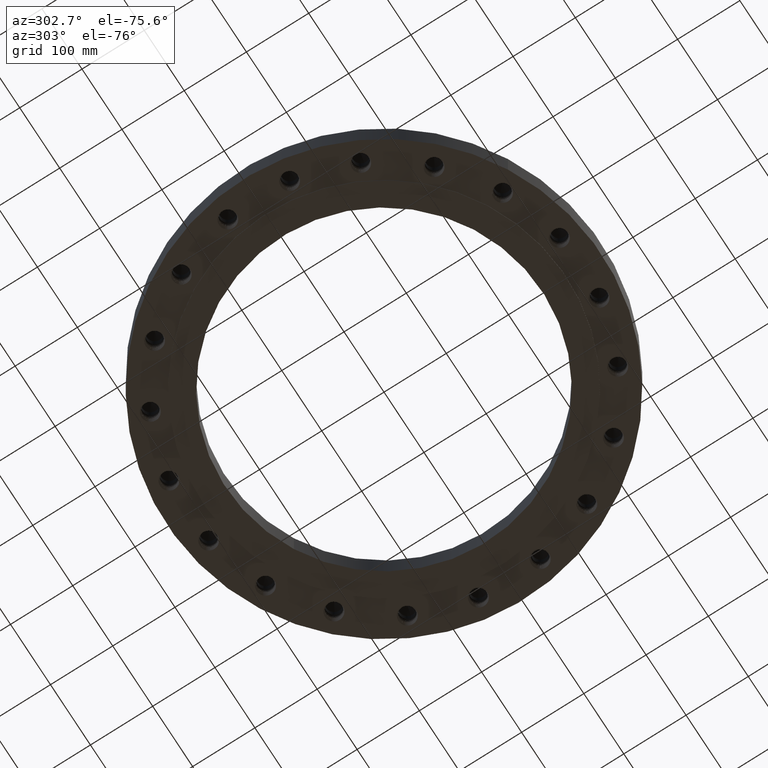
[diagram: clean part render]
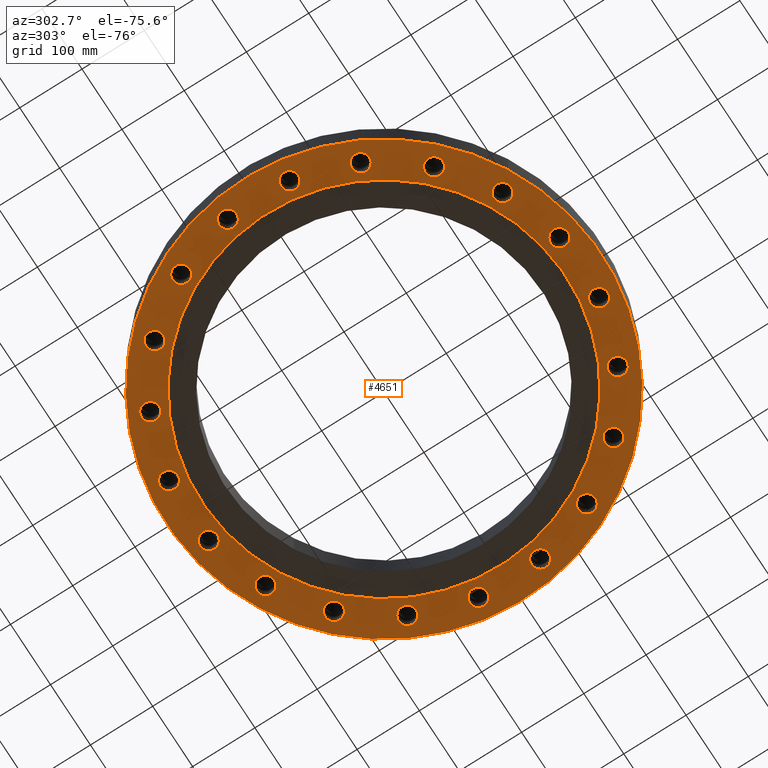
[diagram: same view with one face highlighted and labeled with its STEP entity id]
A machine part, auxiliary view. The second image highlights one B-rep face of the part: STEP entity #4651.
In plain terms, the highlighted planar face has unit normal (0, 0, -1).
Its self-contained STEP definition (entity closure, byte-faithful):
#3642=AXIS2_PLACEMENT_3D('Circle Axis2P3D',#3640,#3641,$) ;
#3662=AXIS2_PLACEMENT_3D('Circle Axis2P3D',#3660,#3661,$) ;
#3682=AXIS2_PLACEMENT_3D('Circle Axis2P3D',#3680,#3681,$) ;
#3694=AXIS2_PLACEMENT_3D('Plane Axis2P3D',#3691,#3692,#3693) ;
#3698=AXIS2_PLACEMENT_3D('Circle Axis2P3D',#3696,#3697,$) ;
#3707=AXIS2_PLACEMENT_3D('Circle Axis2P3D',#3705,#3706,$) ;
#3723=AXIS2_PLACEMENT_3D('Circle Axis2P3D',#3721,#3722,$) ;
#3732=AXIS2_PLACEMENT_3D('Circle Axis2P3D',#3730,#3731,$) ;
#3741=AXIS2_PLACEMENT_3D('Circle Axis2P3D',#3739,#3740,$) ;
#3750=AXIS2_PLACEMENT_3D('Circle Axis2P3D',#3748,#3749,$) ;
#3757=AXIS2_PLACEMENT_3D('Circle Axis2P3D',#3755,#3756,$) ;
#3789=AXIS2_PLACEMENT_3D('Circle Axis2P3D',#3787,#3788,$) ;
#3798=AXIS2_PLACEMENT_3D('Circle Axis2P3D',#3796,#3797,$) ;
#3805=AXIS2_PLACEMENT_3D('Circle Axis2P3D',#3803,#3804,$) ;
#3837=AXIS2_PLACEMENT_3D('Circle Axis2P3D',#3835,#3836,$) ;
#3846=AXIS2_PLACEMENT_3D('Circle Axis2P3D',#3844,#3845,$) ;
#3853=AXIS2_PLACEMENT_3D('Circle Axis2P3D',#3851,#3852,$) ;
#3885=AXIS2_PLACEMENT_3D('Circle Axis2P3D',#3883,#3884,$) ;
#3894=AXIS2_PLACEMENT_3D('Circle Axis2P3D',#3892,#3893,$) ;
#3901=AXIS2_PLACEMENT_3D('Circle Axis2P3D',#3899,#3900,$) ;
#3933=AXIS2_PLACEMENT_3D('Circle Axis2P3D',#3931,#3932,$) ;
#3942=AXIS2_PLACEMENT_3D('Circle Axis2P3D',#3940,#3941,$) ;
#3949=AXIS2_PLACEMENT_3D('Circle Axis2P3D',#3947,#3948,$) ;
#3981=AXIS2_PLACEMENT_3D('Circle Axis2P3D',#3979,#3980,$) ;
#3990=AXIS2_PLACEMENT_3D('Circle Axis2P3D',#3988,#3989,$) ;
#3997=AXIS2_PLACEMENT_3D('Circle Axis2P3D',#3995,#3996,$) ;
#4029=AXIS2_PLACEMENT_3D('Circle Axis2P3D',#4027,#4028,$) ;
#4038=AXIS2_PLACEMENT_3D('Circle Axis2P3D',#4036,#4037,$) ;
#4045=AXIS2_PLACEMENT_3D('Circle Axis2P3D',#4043,#4044,$) ;
#4077=AXIS2_PLACEMENT_3D('Circle Axis2P3D',#4075,#4076,$) ;
#4086=AXIS2_PLACEMENT_3D('Circle Axis2P3D',#4084,#4085,$) ;
#4093=AXIS2_PLACEMENT_3D('Circle Axis2P3D',#4091,#4092,$) ;
#4125=AXIS2_PLACEMENT_3D('Circle Axis2P3D',#4123,#4124,$) ;
#4134=AXIS2_PLACEMENT_3D('Circle Axis2P3D',#4132,#4133,$) ;
#4141=AXIS2_PLACEMENT_3D('Circle Axis2P3D',#4139,#4140,$) ;
#4173=AXIS2_PLACEMENT_3D('Circle Axis2P3D',#4171,#4172,$) ;
#4182=AXIS2_PLACEMENT_3D('Circle Axis2P3D',#4180,#4181,$) ;
#4189=AXIS2_PLACEMENT_3D('Circle Axis2P3D',#4187,#4188,$) ;
#4221=AXIS2_PLACEMENT_3D('Circle Axis2P3D',#4219,#4220,$) ;
#4230=AXIS2_PLACEMENT_3D('Circle Axis2P3D',#4228,#4229,$) ;
#4237=AXIS2_PLACEMENT_3D('Circle Axis2P3D',#4235,#4236,$) ;
#4269=AXIS2_PLACEMENT_3D('Circle Axis2P3D',#4267,#4268,$) ;
#4278=AXIS2_PLACEMENT_3D('Circle Axis2P3D',#4276,#4277,$) ;
#4285=AXIS2_PLACEMENT_3D('Circle Axis2P3D',#4283,#4284,$) ;
#4317=AXIS2_PLACEMENT_3D('Circle Axis2P3D',#4315,#4316,$) ;
#4326=AXIS2_PLACEMENT_3D('Circle Axis2P3D',#4324,#4325,$) ;
#4333=AXIS2_PLACEMENT_3D('Circle Axis2P3D',#4331,#4332,$) ;
#4365=AXIS2_PLACEMENT_3D('Circle Axis2P3D',#4363,#4364,$) ;
#4374=AXIS2_PLACEMENT_3D('Circle Axis2P3D',#4372,#4373,$) ;
#4381=AXIS2_PLACEMENT_3D('Circle Axis2P3D',#4379,#4380,$) ;
#4413=AXIS2_PLACEMENT_3D('Circle Axis2P3D',#4411,#4412,$) ;
#4422=AXIS2_PLACEMENT_3D('Circle Axis2P3D',#4420,#4421,$) ;
#4429=AXIS2_PLACEMENT_3D('Circle Axis2P3D',#4427,#4428,$) ;
#4461=AXIS2_PLACEMENT_3D('Circle Axis2P3D',#4459,#4460,$) ;
#4470=AXIS2_PLACEMENT_3D('Circle Axis2P3D',#4468,#4469,$) ;
#4477=AXIS2_PLACEMENT_3D('Circle Axis2P3D',#4475,#4476,$) ;
#4509=AXIS2_PLACEMENT_3D('Circle Axis2P3D',#4507,#4508,$) ;
#4518=AXIS2_PLACEMENT_3D('Circle Axis2P3D',#4516,#4517,$) ;
#4525=AXIS2_PLACEMENT_3D('Circle Axis2P3D',#4523,#4524,$) ;
#4557=AXIS2_PLACEMENT_3D('Circle Axis2P3D',#4555,#4556,$) ;
#4566=AXIS2_PLACEMENT_3D('Circle Axis2P3D',#4564,#4565,$) ;
#4573=AXIS2_PLACEMENT_3D('Circle Axis2P3D',#4571,#4572,$) ;
#4605=AXIS2_PLACEMENT_3D('Circle Axis2P3D',#4603,#4604,$) ;
#4614=AXIS2_PLACEMENT_3D('Circle Axis2P3D',#4612,#4613,$) ;
#4621=AXIS2_PLACEMENT_3D('Circle Axis2P3D',#4619,#4620,$) ;
#3359=CARTESIAN_POINT('Vertex',(8.83883476487,8.27633476486,-1.87951141964E-016)) ;
#3578=CARTESIAN_POINT('Vertex',(8.90788780743,8.28310850373,0.)) ;
#3582=CARTESIAN_POINT('Control Point',(8.83883476487,8.27633476486,-1.22386790116E-016)) ;
#3583=CARTESIAN_POINT('Control Point',(8.86198857598,8.27716758034,-1.22608026103E-016)) ;
#3584=CARTESIAN_POINT('Control Point',(8.88506632408,8.27943275015,-1.52625923821E-012)) ;
#3585=CARTESIAN_POINT('Control Point',(8.90788776963,8.28310840162,5.93087914738E-012)) ;
#3615=CARTESIAN_POINT('Control Point',(8.83883476487,8.27633476487,1.74838271676E-017)) ;
#3616=CARTESIAN_POINT('Control Point',(8.81569341192,8.27716713227,1.74838271592E-017)) ;
#3617=CARTESIAN_POINT('Control Point',(8.79262782433,8.27943036787,-2.94991641616E-011)) ;
#3618=CARTESIAN_POINT('Control Point',(8.76981495608,8.28310428399,-7.44357462807E-011)) ;
#3619=CARTESIAN_POINT('Vertex',(8.7698149593,8.2831043748,0.)) ;
#3640=CARTESIAN_POINT('Axis2P3D Location',(8.83883476487,8.83883476487,0.)) ;
#3644=CARTESIAN_POINT('Vertex',(8.34738853021,8.57035646325,0.)) ;
#3660=CARTESIAN_POINT('Axis2P3D Location',(8.83883476487,8.83883476487,0.)) ;
#3664=CARTESIAN_POINT('Vertex',(9.33028099953,9.10731306649,0.)) ;
#3680=CARTESIAN_POINT('Axis2P3D Location',(8.83883476487,8.83883476487,0.)) ;
#3691=CARTESIAN_POINT('Axis2P3D Location',(0.,13.7500000001,0.)) ;
#3696=CARTESIAN_POINT('Axis2P3D Location',(0.,0.,0.)) ;
#3700=CARTESIAN_POINT('Vertex',(-6.59210115583,-12.066760226,-4.9234457281E-014)) ;
#3702=CARTESIAN_POINT('Vertex',(6.59210115583,12.066760226,-4.9234457281E-014)) ;
#3705=CARTESIAN_POINT('Axis2P3D Location',(0.,0.,0.)) ;
#3721=CARTESIAN_POINT('Axis2P3D Location',(0.,0.,0.)) ;
#3725=CARTESIAN_POINT('Vertex',(5.51339369397,10.0921994618,-3.60866192571E-014)) ;
#3727=CARTESIAN_POINT('Vertex',(-5.51339369397,-10.0921994618,-3.60866192571E-014)) ;
#3730=CARTESIAN_POINT('Axis2P3D Location',(0.,0.,0.)) ;
#3739=CARTESIAN_POINT('Axis2P3D Location',(11.1375815524,5.67488124677,0.)) ;
#3743=CARTESIAN_POINT('Vertex',(11.6879390541,5.77835404667,0.)) ;
#3745=CARTESIAN_POINT('Vertex',(11.0315260396,5.12501560118,0.)) ;
#3748=CARTESIAN_POINT('Axis2P3D Location',(11.1375815524,5.67488124677,0.)) ;
#3752=CARTESIAN_POINT('Vertex',(10.5872240507,5.57140844686,8.74191357973E-018)) ;
#3755=CARTESIAN_POINT('Axis2P3D Location',(11.1375815524,5.67488124677,0.)) ;
#3759=CARTESIAN_POINT('Vertex',(10.9002096817,5.16767853087,0.)) ;
#3763=CARTESIAN_POINT('Control Point',(10.9637594931,5.13991195635,0.)) ;
#3764=CARTESIAN_POINT('Control Point',(10.9507085818,5.14467757622,0.)) ;
#3765=CARTESIAN_POINT('Control Point',(10.9378117129,5.14984391452,0.)) ;
#3766=CARTESIAN_POINT('Control Point',(10.9250855335,5.15540462824,0.)) ;
#3767=CARTESIAN_POINT('Control Point',(10.9125462848,5.16135230081,0.)) ;
#3768=CARTESIAN_POINT('Control Point',(10.9002096817,5.16767853087,0.)) ;
#3769=CARTESIAN_POINT('Vertex',(10.9637594931,5.13991195635,-1.87951141964E-016)) ;
#3773=CARTESIAN_POINT('Control Point',(10.9637594931,5.13991195635,0.)) ;
#3774=CARTESIAN_POINT('Control Point',(10.9771262553,5.13609423643,0.)) ;
#3775=CARTESIAN_POINT('Control Point',(10.9906040502,5.13269169512,0.)) ;
#3776=CARTESIAN_POINT('Control Point',(11.0041751901,5.1297089354,0.)) ;
#3777=CARTESIAN_POINT('Control Point',(11.0178218218,5.12714944732,0.)) ;
#3778=CARTESIAN_POINT('Control Point',(11.0315260396,5.12501560118,0.)) ;
#3787=CARTESIAN_POINT('Axis2P3D Location',(12.3461042575,1.95543081301,0.)) ;
#3791=CARTESIAN_POINT('Vertex',(12.9015001994,1.88376947261,0.)) ;
#3793=CARTESIAN_POINT('Vertex',(12.0753216418,1.46525046349,0.)) ;
#3796=CARTESIAN_POINT('Axis2P3D Location',(12.3461042575,1.95543081301,0.)) ;
#3800=CARTESIAN_POINT('Vertex',(11.7907083156,2.02709215341,0.)) ;
#3803=CARTESIAN_POINT('Axis2P3D Location',(12.3461042575,1.95543081301,0.)) ;
#3807=CARTESIAN_POINT('Vertex',(11.9636159343,1.54640430697,0.)) ;
#3811=CARTESIAN_POINT('Control Point',(12.0154750531,1.50035875367,0.)) ;
#3812=CARTESIAN_POINT('Control Point',(12.0045355564,1.50892408089,0.)) ;
#3813=CARTESIAN_POINT('Control Point',(11.9938663916,1.51782291222,0.)) ;
#3814=CARTESIAN_POINT('Control Point',(11.9834814308,1.52704407096,0.)) ;
#3815=CARTESIAN_POINT('Control Point',(11.9733938285,1.53657548464,0.)) ;
#3816=CARTESIAN_POINT('Control Point',(11.9636159343,1.54640430697,0.)) ;
#3817=CARTESIAN_POINT('Vertex',(12.0154750531,1.50035875367,-1.87951141964E-016)) ;
#3821=CARTESIAN_POINT('Control Point',(12.0154750531,1.50035875367,0.)) ;
#3822=CARTESIAN_POINT('Control Point',(12.0270078591,1.49259732957,0.)) ;
#3823=CARTESIAN_POINT('Control Point',(12.0387745606,1.48519645283,0.)) ;
#3824=CARTESIAN_POINT('Control Point',(12.0507597582,1.47816596689,0.)) ;
#3825=CARTESIAN_POINT('Control Point',(12.062947551,1.47151470794,0.)) ;
#3826=CARTESIAN_POINT('Control Point',(12.0753216418,1.46525046349,0.)) ;
#3835=CARTESIAN_POINT('Axis2P3D Location',(12.3461042575,-1.95543081301,0.)) ;
#3839=CARTESIAN_POINT('Vertex',(12.8521726151,-2.19521158242,0.)) ;
#3841=CARTESIAN_POINT('Vertex',(11.937100628,-2.33794359855,0.)) ;
#3844=CARTESIAN_POINT('Axis2P3D Location',(12.3461042575,-1.95543081301,0.)) ;
#3848=CARTESIAN_POINT('Vertex',(11.8400358998,-1.7156500436,0.)) ;
#3851=CARTESIAN_POINT('Axis2P3D Location',(12.3461042575,-1.95543081301,0.)) ;
#3855=CARTESIAN_POINT('Vertex',(11.8559401038,-2.2262427449,0.)) ;
#3859=CARTESIAN_POINT('Control Point',(11.8910321982,-2.28606001743,0.)) ;
#3860=CARTESIAN_POINT('Control Point',(11.8832749502,-2.27453341677,0.)) ;
#3861=CARTESIAN_POINT('Control Point',(11.8758778616,-2.26277317201,0.)) ;
#3862=CARTESIAN_POINT('Control Point',(11.8688506717,-2.25079419952,0.)) ;
#3863=CARTESIAN_POINT('Control Point',(11.8622021607,-2.23861204589,0.)) ;
#3864=CARTESIAN_POINT('Control Point',(11.8559401038,-2.2262427449,0.)) ;
#3865=CARTESIAN_POINT('Vertex',(11.8910321982,-2.28606001743,-1.87951141964E-016)) ;
#3869=CARTESIAN_POINT('Control Point',(11.8910321982,-2.28606001743,0.)) ;
#3870=CARTESIAN_POINT('Control Point',(11.8996021365,-2.29700540343,0.)) ;
#3871=CARTESIAN_POINT('Control Point',(11.908505938,-2.30768016623,0.)) ;
#3872=CARTESIAN_POINT('Control Point',(11.9177319986,-2.31807018544,0.)) ;
#3873=CARTESIAN_POINT('Control Point',(11.9272679263,-2.32816214368,0.)) ;
#3874=CARTESIAN_POINT('Control Point',(11.937100628,-2.33794359855,0.)) ;
#3883=CARTESIAN_POINT('Axis2P3D Location',(11.1375815524,-5.67488124677,0.)) ;
#3887=CARTESIAN_POINT('Vertex',(11.544784829,-6.05931003283,0.)) ;
#3889=CARTESIAN_POINT('Vertex',(10.6303930341,-5.91228345178,0.)) ;
#3892=CARTESIAN_POINT('Axis2P3D Location',(11.1375815524,-5.67488124677,0.)) ;
#3896=CARTESIAN_POINT('Vertex',(10.7303782758,-5.29045246071,0.)) ;
#3899=CARTESIAN_POINT('Axis2P3D Location',(11.1375815524,-5.67488124677,0.)) ;
#3903=CARTESIAN_POINT('Vertex',(10.5877222508,-5.78096964573,0.)) ;
#3907=CARTESIAN_POINT('Control Point',(10.602612262,-5.8487033061,0.)) ;
#3908=CARTESIAN_POINT('Control Point',(10.5987965962,-5.83534373598,0.)) ;
#3909=CARTESIAN_POINT('Control Point',(10.5953956624,-5.82187325248,0.)) ;
#3910=CARTESIAN_POINT('Control Point',(10.5924141138,-5.80830905152,0.)) ;
#3911=CARTESIAN_POINT('Control Point',(10.5898554965,-5.79466863203,0.)) ;
#3912=CARTESIAN_POINT('Control Point',(10.5877222508,-5.78096964573,0.)) ;
#3913=CARTESIAN_POINT('Vertex',(10.602612262,-5.8487033061,-1.87951141964E-016)) ;
#3917=CARTESIAN_POINT('Control Point',(10.602612262,-5.8487033061,0.)) ;
#3918=CARTESIAN_POINT('Control Point',(10.6073804474,-5.86176124338,0.)) ;
#3919=CARTESIAN_POINT('Control Point',(10.6125497827,-5.87466497208,0.)) ;
#3920=CARTESIAN_POINT('Control Point',(10.6181135953,-5.88739747708,0.)) ;
#3921=CARTESIAN_POINT('Control Point',(10.6240642148,-5.89994226344,0.)) ;
#3922=CARTESIAN_POINT('Control Point',(10.6303930341,-5.91228345178,0.)) ;
#3931=CARTESIAN_POINT('Axis2P3D Location',(8.83883476487,-8.83883476487,0.)) ;
#3935=CARTESIAN_POINT('Vertex',(9.10731306649,-9.33028099953,0.)) ;
#3937=CARTESIAN_POINT('Vertex',(8.28310850373,-8.90788780743,0.)) ;
#3940=CARTESIAN_POINT('Axis2P3D Location',(8.83883476487,-8.83883476487,0.)) ;
#3944=CARTESIAN_POINT('Vertex',(8.57035646325,-8.34738853021,0.)) ;
#3947=CARTESIAN_POINT('Axis2P3D Location',(8.83883476487,-8.83883476487,0.)) ;
#3951=CARTESIAN_POINT('Vertex',(8.2831043748,-8.76981495928,0.)) ;
#3955=CARTESIAN_POINT('Control Point',(8.27633476487,-8.83883476487,0.)) ;
#3956=CARTESIAN_POINT('Control Point',(8.27683418531,-8.82494995309,0.)) ;
#3957=CARTESIAN_POINT('Control Point',(8.27776231338,-8.81108781564,0.)) ;
#3958=CARTESIAN_POINT('Control Point',(8.27911826068,-8.79726614472,0.)) ;
#3959=CARTESIAN_POINT('Control Point',(8.28089999251,-8.78350267867,0.)) ;
#3960=CARTESIAN_POINT('Control Point',(8.2831043748,-8.76981495928,0.)) ;
#3961=CARTESIAN_POINT('Vertex',(8.27633476486,-8.83883476487,-1.87951141964E-016)) ;
#3965=CARTESIAN_POINT('Control Point',(8.27633476486,-8.83883476487,0.)) ;
#3966=CARTESIAN_POINT('Control Point',(8.27683445415,-8.85272705153,0.)) ;
#3967=CARTESIAN_POINT('Control Point',(8.27776331272,-8.86659663925,0.)) ;
#3968=CARTESIAN_POINT('Control Point',(8.27912025252,-8.88042528375,0.)) ;
#3969=CARTESIAN_POINT('Control Point',(8.28090307583,-8.89419492713,0.)) ;
#3970=CARTESIAN_POINT('Control Point',(8.28310850373,-8.90788780743,0.)) ;
#3979=CARTESIAN_POINT('Axis2P3D Location',(5.67488124677,-11.1375815524,0.)) ;
#3983=CARTESIAN_POINT('Vertex',(5.77835404667,-11.6879390541,0.)) ;
#3985=CARTESIAN_POINT('Vertex',(5.12501560117,-11.0315260396,0.)) ;
#3988=CARTESIAN_POINT('Axis2P3D Location',(5.67488124677,-11.1375815524,0.)) ;
#3992=CARTESIAN_POINT('Vertex',(5.57140844686,-10.5872240507,8.74191357973E-018)) ;
#3995=CARTESIAN_POINT('Axis2P3D Location',(5.67488124677,-11.1375815524,0.)) ;
#3999=CARTESIAN_POINT('Vertex',(5.16767853086,-10.9002096817,0.)) ;
#4003=CARTESIAN_POINT('Control Point',(5.13991195635,-10.9637594931,0.)) ;
#4004=CARTESIAN_POINT('Control Point',(5.14467757622,-10.9507085818,0.)) ;
#4005=CARTESIAN_POINT('Control Point',(5.14984391451,-10.937811713,0.)) ;
#4006=CARTESIAN_POINT('Control Point',(5.15540462824,-10.9250855335,0.)) ;
#4007=CARTESIAN_POINT('Control Point',(5.16135230081,-10.9125462849,0.)) ;
#4008=CARTESIAN_POINT('Control Point',(5.16767853086,-10.9002096817,0.)) ;
#4009=CARTESIAN_POINT('Vertex',(5.13991195635,-10.9637594931,-1.87951141964E-016)) ;
#4013=CARTESIAN_POINT('Control Point',(5.13991195635,-10.9637594931,0.)) ;
#4014=CARTESIAN_POINT('Control Point',(5.13609423643,-10.9771262553,0.)) ;
#4015=CARTESIAN_POINT('Control Point',(5.13269169512,-10.9906040502,0.)) ;
#4016=CARTESIAN_POINT('Control Point',(5.12970893539,-11.0041751901,0.)) ;
#4017=CARTESIAN_POINT('Control Point',(5.12714944732,-11.0178218218,0.)) ;
#4018=CARTESIAN_POINT('Control Point',(5.12501560117,-11.0315260396,0.)) ;
#4027=CARTESIAN_POINT('Axis2P3D Location',(1.95543081301,-12.3461042575,0.)) ;
#4031=CARTESIAN_POINT('Vertex',(1.88376947261,-12.9015001994,0.)) ;
#4033=CARTESIAN_POINT('Vertex',(1.46525046349,-12.0753216418,0.)) ;
#4036=CARTESIAN_POINT('Axis2P3D Location',(1.95543081301,-12.3461042575,0.)) ;
#4040=CARTESIAN_POINT('Vertex',(2.02709215341,-11.7907083156,0.)) ;
#4043=CARTESIAN_POINT('Axis2P3D Location',(1.95543081301,-12.3461042575,0.)) ;
#4047=CARTESIAN_POINT('Vertex',(1.54640430698,-11.9636159343,0.)) ;
#4051=CARTESIAN_POINT('Control Point',(1.50035875367,-12.0154750531,0.)) ;
#4052=CARTESIAN_POINT('Control Point',(1.50892408089,-12.0045355564,0.)) ;
#4053=CARTESIAN_POINT('Control Point',(1.51782291222,-11.9938663916,0.)) ;
#4054=CARTESIAN_POINT('Control Point',(1.52704407096,-11.9834814307,0.)) ;
#4055=CARTESIAN_POINT('Control Point',(1.53657548465,-11.9733938285,0.)) ;
#4056=CARTESIAN_POINT('Control Point',(1.54640430698,-11.9636159343,0.)) ;
#4057=CARTESIAN_POINT('Vertex',(1.50035875367,-12.0154750531,-1.87951141964E-016)) ;
#4061=CARTESIAN_POINT('Control Point',(1.50035875367,-12.0154750531,0.)) ;
#4062=CARTESIAN_POINT('Control Point',(1.49259732957,-12.0270078591,0.)) ;
#4063=CARTESIAN_POINT('Control Point',(1.48519645283,-12.0387745606,0.)) ;
#4064=CARTESIAN_POINT('Control Point',(1.47816596689,-12.0507597582,0.)) ;
#4065=CARTESIAN_POINT('Control Point',(1.47151470794,-12.062947551,0.)) ;
#4066=CARTESIAN_POINT('Control Point',(1.46525046349,-12.0753216418,0.)) ;
#4075=CARTESIAN_POINT('Axis2P3D Location',(-1.95543081301,-12.3461042575,0.)) ;
#4079=CARTESIAN_POINT('Vertex',(-2.19521158242,-12.8521726151,0.)) ;
#4081=CARTESIAN_POINT('Vertex',(-2.33794359856,-11.937100628,0.)) ;
#4084=CARTESIAN_POINT('Axis2P3D Location',(-1.95543081301,-12.3461042575,0.)) ;
#4088=CARTESIAN_POINT('Vertex',(-1.7156500436,-11.8400358998,8.74191357973E-018)) ;
#4091=CARTESIAN_POINT('Axis2P3D Location',(-1.95543081301,-12.3461042575,0.)) ;
#4095=CARTESIAN_POINT('Vertex',(-2.22624274488,-11.8559401038,0.)) ;
#4099=CARTESIAN_POINT('Control Point',(-2.28606001743,-11.8910321982,0.)) ;
#4100=CARTESIAN_POINT('Control Point',(-2.27453341677,-11.8832749502,0.)) ;
#4101=CARTESIAN_POINT('Control Point',(-2.262773172,-11.8758778616,0.)) ;
#4102=CARTESIAN_POINT('Control Point',(-2.25079419951,-11.8688506717,0.)) ;
#4103=CARTESIAN_POINT('Control Point',(-2.23861204588,-11.8622021606,0.)) ;
#4104=CARTESIAN_POINT('Control Point',(-2.22624274488,-11.8559401038,0.)) ;
#4105=CARTESIAN_POINT('Vertex',(-2.28606001743,-11.8910321982,-1.87951141964E-016)) ;
#4109=CARTESIAN_POINT('Control Point',(-2.28606001743,-11.8910321982,0.)) ;
#4110=CARTESIAN_POINT('Control Point',(-2.29700540344,-11.8996021365,0.)) ;
#4111=CARTESIAN_POINT('Control Point',(-2.30768016624,-11.908505938,0.)) ;
#4112=CARTESIAN_POINT('Control Point',(-2.31807018544,-11.9177319986,0.)) ;
#4113=CARTESIAN_POINT('Control Point',(-2.32816214369,-11.9272679263,0.)) ;
#4114=CARTESIAN_POINT('Control Point',(-2.33794359856,-11.937100628,0.)) ;
#4123=CARTESIAN_POINT('Axis2P3D Location',(-5.67488124677,-11.1375815524,0.)) ;
#4127=CARTESIAN_POINT('Vertex',(-6.05931003283,-11.544784829,0.)) ;
#4129=CARTESIAN_POINT('Vertex',(-5.91228345177,-10.6303930341,0.)) ;
#4132=CARTESIAN_POINT('Axis2P3D Location',(-5.67488124677,-11.1375815524,0.)) ;
#4136=CARTESIAN_POINT('Vertex',(-5.29045246071,-10.7303782758,0.)) ;
#4139=CARTESIAN_POINT('Axis2P3D Location',(-5.67488124677,-11.1375815524,0.)) ;
#4143=CARTESIAN_POINT('Vertex',(-5.78096964574,-10.5877222508,0.)) ;
#4147=CARTESIAN_POINT('Control Point',(-5.8487033061,-10.602612262,0.)) ;
#4148=CARTESIAN_POINT('Control Point',(-5.83534373598,-10.5987965962,0.)) ;
#4149=CARTESIAN_POINT('Control Point',(-5.82187325249,-10.5953956624,0.)) ;
#4150=CARTESIAN_POINT('Control Point',(-5.80830905153,-10.5924141138,0.)) ;
#4151=CARTESIAN_POINT('Control Point',(-5.79466863204,-10.5898554965,0.)) ;
#4152=CARTESIAN_POINT('Control Point',(-5.78096964574,-10.5877222508,0.)) ;
#4153=CARTESIAN_POINT('Vertex',(-5.8487033061,-10.602612262,-1.87951141964E-016)) ;
#4157=CARTESIAN_POINT('Control Point',(-5.8487033061,-10.602612262,0.)) ;
#4158=CARTESIAN_POINT('Control Point',(-5.86176124338,-10.6073804474,0.)) ;
#4159=CARTESIAN_POINT('Control Point',(-5.87466497207,-10.6125497827,0.)) ;
#4160=CARTESIAN_POINT('Control Point',(-5.88739747708,-10.6181135953,0.)) ;
#4161=CARTESIAN_POINT('Control Point',(-5.89994226343,-10.6240642148,0.)) ;
#4162=CARTESIAN_POINT('Control Point',(-5.91228345177,-10.6303930341,0.)) ;
#4171=CARTESIAN_POINT('Axis2P3D Location',(-8.83883476487,-8.83883476487,0.)) ;
#4175=CARTESIAN_POINT('Vertex',(-9.33028099953,-9.10731306649,0.)) ;
#4177=CARTESIAN_POINT('Vertex',(-8.90788780744,-8.28310850373,0.)) ;
#4180=CARTESIAN_POINT('Axis2P3D Location',(-8.83883476487,-8.83883476487,0.)) ;
#4184=CARTESIAN_POINT('Vertex',(-8.34738853021,-8.57035646325,0.)) ;
#4187=CARTESIAN_POINT('Axis2P3D Location',(-8.83883476487,-8.83883476487,0.)) ;
#4191=CARTESIAN_POINT('Vertex',(-8.76981495931,-8.2831043748,0.)) ;
#4195=CARTESIAN_POINT('Control Point',(-8.83883476487,-8.27633476487,0.)) ;
#4196=CARTESIAN_POINT('Control Point',(-8.8249499531,-8.27683418531,0.)) ;
#4197=CARTESIAN_POINT('Control Point',(-8.81108781566,-8.27776231338,0.)) ;
#4198=CARTESIAN_POINT('Control Point',(-8.79726614474,-8.27911826068,0.)) ;
#4199=CARTESIAN_POINT('Control Point',(-8.78350267869,-8.2808999925,0.)) ;
#4200=CARTESIAN_POINT('Control Point',(-8.76981495931,-8.2831043748,0.)) ;
#4201=CARTESIAN_POINT('Vertex',(-8.83883476487,-8.27633476486,-1.87951141964E-016)) ;
#4205=CARTESIAN_POINT('Control Point',(-8.83883476487,-8.27633476486,0.)) ;
#4206=CARTESIAN_POINT('Control Point',(-8.85272705154,-8.27683445415,0.)) ;
#4207=CARTESIAN_POINT('Control Point',(-8.86659663926,-8.27776331272,0.)) ;
#4208=CARTESIAN_POINT('Control Point',(-8.88042528375,-8.27912025252,0.)) ;
#4209=CARTESIAN_POINT('Control Point',(-8.89419492713,-8.28090307583,0.)) ;
#4210=CARTESIAN_POINT('Control Point',(-8.90788780744,-8.28310850373,0.)) ;
#4219=CARTESIAN_POINT('Axis2P3D Location',(-11.1375815524,-5.67488124677,0.)) ;
#4223=CARTESIAN_POINT('Vertex',(-11.6879390541,-5.77835404667,0.)) ;
#4225=CARTESIAN_POINT('Vertex',(-11.0315260396,-5.12501560117,0.)) ;
#4228=CARTESIAN_POINT('Axis2P3D Location',(-11.1375815524,-5.67488124677,0.)) ;
#4232=CARTESIAN_POINT('Vertex',(-10.5872240507,-5.57140844686,0.)) ;
#4235=CARTESIAN_POINT('Axis2P3D Location',(-11.1375815524,-5.67488124677,0.)) ;
#4239=CARTESIAN_POINT('Vertex',(-10.9002096817,-5.16767853086,0.)) ;
#4243=CARTESIAN_POINT('Control Point',(-10.9637594931,-5.13991195635,0.)) ;
#4244=CARTESIAN_POINT('Control Point',(-10.9507085818,-5.14467757622,0.)) ;
#4245=CARTESIAN_POINT('Control Point',(-10.937811713,-5.14984391451,0.)) ;
#4246=CARTESIAN_POINT('Control Point',(-10.9250855335,-5.15540462824,0.)) ;
#4247=CARTESIAN_POINT('Control Point',(-10.9125462849,-5.16135230081,0.)) ;
#4248=CARTESIAN_POINT('Control Point',(-10.9002096817,-5.16767853086,0.)) ;
#4249=CARTESIAN_POINT('Vertex',(-10.9637594931,-5.13991195635,-1.87951141964E-016)) ;
#4253=CARTESIAN_POINT('Control Point',(-10.9637594931,-5.13991195635,0.)) ;
#4254=CARTESIAN_POINT('Control Point',(-10.9771262553,-5.13609423643,0.)) ;
#4255=CARTESIAN_POINT('Control Point',(-10.9906040502,-5.13269169512,0.)) ;
#4256=CARTESIAN_POINT('Control Point',(-11.0041751901,-5.12970893539,0.)) ;
#4257=CARTESIAN_POINT('Control Point',(-11.0178218219,-5.12714944731,0.)) ;
#4258=CARTESIAN_POINT('Control Point',(-11.0315260396,-5.12501560117,0.)) ;
#4267=CARTESIAN_POINT('Axis2P3D Location',(-12.3461042575,-1.95543081301,0.)) ;
#4271=CARTESIAN_POINT('Vertex',(-12.9015001994,-1.88376947261,0.)) ;
#4273=CARTESIAN_POINT('Vertex',(-12.0753216418,-1.46525046349,0.)) ;
#4276=CARTESIAN_POINT('Axis2P3D Location',(-12.3461042575,-1.95543081301,0.)) ;
#4280=CARTESIAN_POINT('Vertex',(-11.7907083156,-2.02709215341,8.74191357973E-018)) ;
#4283=CARTESIAN_POINT('Axis2P3D Location',(-12.3461042575,-1.95543081301,0.)) ;
#4287=CARTESIAN_POINT('Vertex',(-11.9636159343,-1.54640430699,0.)) ;
#4291=CARTESIAN_POINT('Control Point',(-12.0154750531,-1.50035875367,0.)) ;
#4292=CARTESIAN_POINT('Control Point',(-12.0045355564,-1.50892408089,0.)) ;
#4293=CARTESIAN_POINT('Control Point',(-11.9938663916,-1.51782291223,0.)) ;
#4294=CARTESIAN_POINT('Control Point',(-11.9834814307,-1.52704407097,0.)) ;
#4295=CARTESIAN_POINT('Control Point',(-11.9733938285,-1.53657548466,0.)) ;
#4296=CARTESIAN_POINT('Control Point',(-11.9636159343,-1.54640430699,0.)) ;
#4297=CARTESIAN_POINT('Vertex',(-12.0154750531,-1.50035875367,-1.87951141964E-016)) ;
#4301=CARTESIAN_POINT('Control Point',(-12.0154750531,-1.50035875367,0.)) ;
#4302=CARTESIAN_POINT('Control Point',(-12.0270078591,-1.49259732957,0.)) ;
#4303=CARTESIAN_POINT('Control Point',(-12.0387745606,-1.48519645283,0.)) ;
#4304=CARTESIAN_POINT('Control Point',(-12.0507597582,-1.47816596689,0.)) ;
#4305=CARTESIAN_POINT('Control Point',(-12.062947551,-1.47151470794,0.)) ;
#4306=CARTESIAN_POINT('Control Point',(-12.0753216418,-1.46525046349,0.)) ;
#4315=CARTESIAN_POINT('Axis2P3D Location',(-12.3461042575,1.95543081301,0.)) ;
#4319=CARTESIAN_POINT('Vertex',(-12.8521726151,2.19521158242,0.)) ;
#4321=CARTESIAN_POINT('Vertex',(-11.937100628,2.33794359855,0.)) ;
#4324=CARTESIAN_POINT('Axis2P3D Location',(-12.3461042575,1.95543081301,0.)) ;
#4328=CARTESIAN_POINT('Vertex',(-11.8400358998,1.7156500436,-8.74191357973E-018)) ;
#4331=CARTESIAN_POINT('Axis2P3D Location',(-12.3461042575,1.95543081301,0.)) ;
#4335=CARTESIAN_POINT('Vertex',(-11.8559401038,2.22624274488,0.)) ;
#4339=CARTESIAN_POINT('Control Point',(-11.8910321982,2.28606001743,0.)) ;
#4340=CARTESIAN_POINT('Control Point',(-11.8832749502,2.27453341677,0.)) ;
#4341=CARTESIAN_POINT('Control Point',(-11.8758778616,2.262773172,0.)) ;
#4342=CARTESIAN_POINT('Control Point',(-11.8688506717,2.25079419951,0.)) ;
#4343=CARTESIAN_POINT('Control Point',(-11.8622021606,2.23861204588,0.)) ;
#4344=CARTESIAN_POINT('Control Point',(-11.8559401038,2.22624274488,0.)) ;
#4345=CARTESIAN_POINT('Vertex',(-11.8910321982,2.28606001743,-1.87951141964E-016)) ;
#4349=CARTESIAN_POINT('Control Point',(-11.8910321982,2.28606001743,0.)) ;
#4350=CARTESIAN_POINT('Control Point',(-11.8996021365,2.29700540343,0.)) ;
#4351=CARTESIAN_POINT('Control Point',(-11.908505938,2.30768016623,0.)) ;
#4352=CARTESIAN_POINT('Control Point',(-11.9177319986,2.31807018543,0.)) ;
#4353=CARTESIAN_POINT('Control Point',(-11.9272679263,2.32816214368,0.)) ;
#4354=CARTESIAN_POINT('Control Point',(-11.937100628,2.33794359855,0.)) ;
#4363=CARTESIAN_POINT('Axis2P3D Location',(-11.1375815524,5.67488124677,0.)) ;
#4367=CARTESIAN_POINT('Vertex',(-11.544784829,6.05931003283,0.)) ;
#4369=CARTESIAN_POINT('Vertex',(-10.6303930341,5.91228345177,0.)) ;
#4372=CARTESIAN_POINT('Axis2P3D Location',(-11.1375815524,5.67488124677,0.)) ;
#4376=CARTESIAN_POINT('Vertex',(-10.7303782758,5.29045246071,0.)) ;
#4379=CARTESIAN_POINT('Axis2P3D Location',(-11.1375815524,5.67488124677,0.)) ;
#4383=CARTESIAN_POINT('Vertex',(-10.5877222508,5.78096964573,0.)) ;
#4387=CARTESIAN_POINT('Control Point',(-10.602612262,5.8487033061,0.)) ;
#4388=CARTESIAN_POINT('Control Point',(-10.5987965962,5.83534373598,0.)) ;
#4389=CARTESIAN_POINT('Control Point',(-10.5953956624,5.82187325248,0.)) ;
#4390=CARTESIAN_POINT('Control Point',(-10.5924141138,5.80830905152,0.)) ;
#4391=CARTESIAN_POINT('Control Point',(-10.5898554965,5.79466863203,0.)) ;
#4392=CARTESIAN_POINT('Control Point',(-10.5877222508,5.78096964573,0.)) ;
#4393=CARTESIAN_POINT('Vertex',(-10.602612262,5.8487033061,-1.87951141964E-016)) ;
#4397=CARTESIAN_POINT('Control Point',(-10.602612262,5.8487033061,0.)) ;
#4398=CARTESIAN_POINT('Control Point',(-10.6073804474,5.86176124338,0.)) ;
#4399=CARTESIAN_POINT('Control Point',(-10.6125497827,5.87466497207,0.)) ;
#4400=CARTESIAN_POINT('Control Point',(-10.6181135953,5.88739747707,0.)) ;
#4401=CARTESIAN_POINT('Control Point',(-10.6240642148,5.89994226343,0.)) ;
#4402=CARTESIAN_POINT('Control Point',(-10.6303930341,5.91228345177,0.)) ;
#4411=CARTESIAN_POINT('Axis2P3D Location',(-8.83883476487,8.83883476487,0.)) ;
#4415=CARTESIAN_POINT('Vertex',(-9.10731306649,9.33028099953,0.)) ;
#4417=CARTESIAN_POINT('Vertex',(-8.28310850373,8.90788780743,0.)) ;
#4420=CARTESIAN_POINT('Axis2P3D Location',(-8.83883476487,8.83883476487,0.)) ;
#4424=CARTESIAN_POINT('Vertex',(-8.57035646325,8.34738853021,-5.24514814784E-016)) ;
#4427=CARTESIAN_POINT('Axis2P3D Location',(-8.83883476487,8.83883476487,0.)) ;
#4431=CARTESIAN_POINT('Vertex',(-8.2831043748,8.76981495929,0.)) ;
#4435=CARTESIAN_POINT('Control Point',(-8.27633476487,8.83883476487,0.)) ;
#4436=CARTESIAN_POINT('Control Point',(-8.27683418531,8.8249499531,0.)) ;
#4437=CARTESIAN_POINT('Control Point',(-8.27776231338,8.81108781565,0.)) ;
#4438=CARTESIAN_POINT('Control Point',(-8.27911826068,8.79726614473,0.)) ;
#4439=CARTESIAN_POINT('Control Point',(-8.28089999251,8.78350267867,0.)) ;
#4440=CARTESIAN_POINT('Control Point',(-8.2831043748,8.76981495929,0.)) ;
#4441=CARTESIAN_POINT('Vertex',(-8.27633476486,8.83883476487,-1.87951141964E-016)) ;
#4445=CARTESIAN_POINT('Control Point',(-8.27633476486,8.83883476487,0.)) ;
#4446=CARTESIAN_POINT('Control Point',(-8.27683445415,8.85272705153,0.)) ;
#4447=CARTESIAN_POINT('Control Point',(-8.27776331272,8.86659663925,0.)) ;
#4448=CARTESIAN_POINT('Control Point',(-8.27912025252,8.88042528375,0.)) ;
#4449=CARTESIAN_POINT('Control Point',(-8.28090307583,8.89419492712,0.)) ;
#4450=CARTESIAN_POINT('Control Point',(-8.28310850373,8.90788780743,0.)) ;
#4459=CARTESIAN_POINT('Axis2P3D Location',(-5.67488124677,11.1375815524,0.)) ;
#4463=CARTESIAN_POINT('Vertex',(-5.77835404667,11.6879390541,0.)) ;
#4465=CARTESIAN_POINT('Vertex',(-5.12501560117,11.0315260396,0.)) ;
#4468=CARTESIAN_POINT('Axis2P3D Location',(-5.67488124677,11.1375815524,0.)) ;
#4472=CARTESIAN_POINT('Vertex',(-5.57140844686,10.5872240507,-4.10869938247E-016)) ;
#4475=CARTESIAN_POINT('Axis2P3D Location',(-5.67488124677,11.1375815524,0.)) ;
#4479=CARTESIAN_POINT('Vertex',(-5.16767853087,10.9002096817,0.)) ;
#4483=CARTESIAN_POINT('Control Point',(-5.13991195635,10.9637594931,0.)) ;
#4484=CARTESIAN_POINT('Control Point',(-5.14467757622,10.9507085818,0.)) ;
#4485=CARTESIAN_POINT('Control Point',(-5.14984391452,10.9378117129,0.)) ;
#4486=CARTESIAN_POINT('Control Point',(-5.15540462824,10.9250855335,0.)) ;
#4487=CARTESIAN_POINT('Control Point',(-5.16135230082,10.9125462848,0.)) ;
#4488=CARTESIAN_POINT('Control Point',(-5.16767853087,10.9002096817,0.)) ;
#4489=CARTESIAN_POINT('Vertex',(-5.13991195635,10.9637594931,-1.87951141964E-016)) ;
#4493=CARTESIAN_POINT('Control Point',(-5.13991195635,10.9637594931,0.)) ;
#4494=CARTESIAN_POINT('Control Point',(-5.13609423643,10.9771262553,0.)) ;
#4495=CARTESIAN_POINT('Control Point',(-5.13269169511,10.9906040502,0.)) ;
#4496=CARTESIAN_POINT('Control Point',(-5.12970893539,11.0041751901,0.)) ;
#4497=CARTESIAN_POINT('Control Point',(-5.12714944731,11.0178218219,0.)) ;
#4498=CARTESIAN_POINT('Control Point',(-5.12501560117,11.0315260396,0.)) ;
#4507=CARTESIAN_POINT('Axis2P3D Location',(-1.95543081301,12.3461042575,0.)) ;
#4511=CARTESIAN_POINT('Vertex',(-1.88376947261,12.9015001994,0.)) ;
#4513=CARTESIAN_POINT('Vertex',(-1.46525046348,12.0753216418,0.)) ;
#4516=CARTESIAN_POINT('Axis2P3D Location',(-1.95543081301,12.3461042575,0.)) ;
#4520=CARTESIAN_POINT('Vertex',(-2.02709215341,11.7907083156,1.04902962957E-016)) ;
#4523=CARTESIAN_POINT('Axis2P3D Location',(-1.95543081301,12.3461042575,0.)) ;
#4527=CARTESIAN_POINT('Vertex',(-1.546404307,11.9636159343,0.)) ;
#4531=CARTESIAN_POINT('Control Point',(-1.50035875367,12.0154750531,0.)) ;
#4532=CARTESIAN_POINT('Control Point',(-1.50892408089,12.0045355564,0.)) ;
#4533=CARTESIAN_POINT('Control Point',(-1.51782291223,11.9938663916,0.)) ;
#4534=CARTESIAN_POINT('Control Point',(-1.52704407097,11.9834814307,0.)) ;
#4535=CARTESIAN_POINT('Control Point',(-1.53657548466,11.9733938285,0.)) ;
#4536=CARTESIAN_POINT('Control Point',(-1.546404307,11.9636159343,0.)) ;
#4537=CARTESIAN_POINT('Vertex',(-1.50035875367,12.0154750531,-1.87951141964E-016)) ;
#4541=CARTESIAN_POINT('Control Point',(-1.50035875367,12.0154750531,0.)) ;
#4542=CARTESIAN_POINT('Control Point',(-1.49259732957,12.0270078591,0.)) ;
#4543=CARTESIAN_POINT('Control Point',(-1.48519645282,12.0387745606,0.)) ;
#4544=CARTESIAN_POINT('Control Point',(-1.47816596688,12.0507597582,0.)) ;
#4545=CARTESIAN_POINT('Control Point',(-1.47151470794,12.062947551,0.)) ;
#4546=CARTESIAN_POINT('Control Point',(-1.46525046348,12.0753216418,0.)) ;
#4555=CARTESIAN_POINT('Axis2P3D Location',(1.95543081301,12.3461042575,0.)) ;
#4559=CARTESIAN_POINT('Vertex',(2.19521158242,12.8521726151,0.)) ;
#4561=CARTESIAN_POINT('Vertex',(2.33794359856,11.937100628,0.)) ;
#4564=CARTESIAN_POINT('Axis2P3D Location',(1.95543081301,12.3461042575,0.)) ;
#4568=CARTESIAN_POINT('Vertex',(1.7156500436,11.8400358998,-8.74191357973E-018)) ;
#4571=CARTESIAN_POINT('Axis2P3D Location',(1.95543081301,12.3461042575,0.)) ;
#4575=CARTESIAN_POINT('Vertex',(2.2262427449,11.8559401038,0.)) ;
#4579=CARTESIAN_POINT('Control Point',(2.28606001743,11.8910321982,0.)) ;
#4580=CARTESIAN_POINT('Control Point',(2.27453341677,11.8832749502,0.)) ;
#4581=CARTESIAN_POINT('Control Point',(2.26277317201,11.8758778616,0.)) ;
#4582=CARTESIAN_POINT('Control Point',(2.25079419952,11.8688506717,0.)) ;
#4583=CARTESIAN_POINT('Control Point',(2.2386120459,11.8622021607,0.)) ;
#4584=CARTESIAN_POINT('Control Point',(2.2262427449,11.8559401038,0.)) ;
#4585=CARTESIAN_POINT('Vertex',(2.28606001743,11.8910321982,-1.87951141964E-016)) ;
#4589=CARTESIAN_POINT('Control Point',(2.28606001743,11.8910321982,0.)) ;
#4590=CARTESIAN_POINT('Control Point',(2.29700540344,11.8996021365,0.)) ;
#4591=CARTESIAN_POINT('Control Point',(2.30768016623,11.908505938,0.)) ;
#4592=CARTESIAN_POINT('Control Point',(2.31807018544,11.9177319986,0.)) ;
#4593=CARTESIAN_POINT('Control Point',(2.32816214369,11.9272679263,0.)) ;
#4594=CARTESIAN_POINT('Control Point',(2.33794359856,11.937100628,0.)) ;
#4603=CARTESIAN_POINT('Axis2P3D Location',(5.67488124677,11.1375815524,0.)) ;
#4607=CARTESIAN_POINT('Vertex',(6.05931003283,11.544784829,0.)) ;
#4609=CARTESIAN_POINT('Vertex',(5.91228345176,10.6303930341,0.)) ;
#4612=CARTESIAN_POINT('Axis2P3D Location',(5.67488124677,11.1375815524,0.)) ;
#4616=CARTESIAN_POINT('Vertex',(5.29045246071,10.7303782758,0.)) ;
#4619=CARTESIAN_POINT('Axis2P3D Location',(5.67488124677,11.1375815524,0.)) ;
#4623=CARTESIAN_POINT('Vertex',(5.78096964575,10.5877222508,0.)) ;
#4627=CARTESIAN_POINT('Control Point',(5.8487033061,10.602612262,0.)) ;
#4628=CARTESIAN_POINT('Control Point',(5.83534373599,10.5987965962,0.)) ;
#4629=CARTESIAN_POINT('Control Point',(5.82187325249,10.5953956624,0.)) ;
#4630=CARTESIAN_POINT('Control Point',(5.80830905154,10.5924141138,0.)) ;
#4631=CARTESIAN_POINT('Control Point',(5.79466863205,10.5898554965,0.)) ;
#4632=CARTESIAN_POINT('Control Point',(5.78096964575,10.5877222508,0.)) ;
#4633=CARTESIAN_POINT('Vertex',(5.8487033061,10.602612262,-1.87951141964E-016)) ;
#4637=CARTESIAN_POINT('Control Point',(5.8487033061,10.602612262,0.)) ;
#4638=CARTESIAN_POINT('Control Point',(5.86176124338,10.6073804474,0.)) ;
#4639=CARTESIAN_POINT('Control Point',(5.87466497207,10.6125497827,0.)) ;
#4640=CARTESIAN_POINT('Control Point',(5.88739747707,10.6181135953,0.)) ;
#4641=CARTESIAN_POINT('Control Point',(5.89994226343,10.6240642148,0.)) ;
#4642=CARTESIAN_POINT('Control Point',(5.91228345176,10.6303930341,0.)) ;
#3641=DIRECTION('Axis2P3D Direction',(0.,0.,-0.0393700787402)) ;
#3661=DIRECTION('Axis2P3D Direction',(0.,0.,-0.0393700787402)) ;
#3681=DIRECTION('Axis2P3D Direction',(0.,0.,-0.0393700787402)) ;
#3692=DIRECTION('Axis2P3D Direction',(0.,0.,-0.0393700787402)) ;
#3693=DIRECTION('Axis2P3D XDirection',(0.0393700787402,0.,0.)) ;
#3697=DIRECTION('Axis2P3D Direction',(0.,0.,-0.0393700787402)) ;
#3706=DIRECTION('Axis2P3D Direction',(0.,0.,-0.0393700787402)) ;
#3722=DIRECTION('Axis2P3D Direction',(0.,0.,-0.0393700787402)) ;
#3731=DIRECTION('Axis2P3D Direction',(0.,0.,-0.0393700787402)) ;
#3740=DIRECTION('Axis2P3D Direction',(0.,0.,-0.0393700787402)) ;
#3749=DIRECTION('Axis2P3D Direction',(0.,0.,-0.0393700787402)) ;
#3756=DIRECTION('Axis2P3D Direction',(0.,0.,-0.0393700787402)) ;
#3788=DIRECTION('Axis2P3D Direction',(0.,0.,-0.0393700787402)) ;
#3797=DIRECTION('Axis2P3D Direction',(0.,0.,-0.0393700787402)) ;
#3804=DIRECTION('Axis2P3D Direction',(0.,0.,-0.0393700787402)) ;
#3836=DIRECTION('Axis2P3D Direction',(0.,0.,-0.0393700787402)) ;
#3845=DIRECTION('Axis2P3D Direction',(0.,0.,-0.0393700787402)) ;
#3852=DIRECTION('Axis2P3D Direction',(0.,0.,-0.0393700787402)) ;
#3884=DIRECTION('Axis2P3D Direction',(0.,0.,-0.0393700787402)) ;
#3893=DIRECTION('Axis2P3D Direction',(0.,0.,-0.0393700787402)) ;
#3900=DIRECTION('Axis2P3D Direction',(0.,0.,-0.0393700787402)) ;
#3932=DIRECTION('Axis2P3D Direction',(0.,0.,-0.0393700787402)) ;
#3941=DIRECTION('Axis2P3D Direction',(0.,0.,-0.0393700787402)) ;
#3948=DIRECTION('Axis2P3D Direction',(0.,0.,-0.0393700787402)) ;
#3980=DIRECTION('Axis2P3D Direction',(0.,0.,-0.0393700787402)) ;
#3989=DIRECTION('Axis2P3D Direction',(0.,0.,-0.0393700787402)) ;
#3996=DIRECTION('Axis2P3D Direction',(0.,0.,-0.0393700787402)) ;
#4028=DIRECTION('Axis2P3D Direction',(0.,0.,-0.0393700787402)) ;
#4037=DIRECTION('Axis2P3D Direction',(0.,0.,-0.0393700787402)) ;
#4044=DIRECTION('Axis2P3D Direction',(0.,0.,-0.0393700787402)) ;
#4076=DIRECTION('Axis2P3D Direction',(0.,0.,-0.0393700787402)) ;
#4085=DIRECTION('Axis2P3D Direction',(0.,0.,-0.0393700787402)) ;
#4092=DIRECTION('Axis2P3D Direction',(0.,0.,-0.0393700787402)) ;
#4124=DIRECTION('Axis2P3D Direction',(0.,0.,-0.0393700787402)) ;
#4133=DIRECTION('Axis2P3D Direction',(0.,0.,-0.0393700787402)) ;
#4140=DIRECTION('Axis2P3D Direction',(0.,0.,-0.0393700787402)) ;
#4172=DIRECTION('Axis2P3D Direction',(0.,0.,-0.0393700787402)) ;
#4181=DIRECTION('Axis2P3D Direction',(0.,0.,-0.0393700787402)) ;
#4188=DIRECTION('Axis2P3D Direction',(0.,0.,-0.0393700787402)) ;
#4220=DIRECTION('Axis2P3D Direction',(0.,0.,-0.0393700787402)) ;
#4229=DIRECTION('Axis2P3D Direction',(0.,0.,-0.0393700787402)) ;
#4236=DIRECTION('Axis2P3D Direction',(0.,0.,-0.0393700787402)) ;
#4268=DIRECTION('Axis2P3D Direction',(0.,0.,-0.0393700787402)) ;
#4277=DIRECTION('Axis2P3D Direction',(0.,0.,-0.0393700787402)) ;
#4284=DIRECTION('Axis2P3D Direction',(0.,0.,-0.0393700787402)) ;
#4316=DIRECTION('Axis2P3D Direction',(0.,0.,-0.0393700787402)) ;
#4325=DIRECTION('Axis2P3D Direction',(0.,0.,-0.0393700787402)) ;
#4332=DIRECTION('Axis2P3D Direction',(0.,0.,-0.0393700787402)) ;
#4364=DIRECTION('Axis2P3D Direction',(0.,0.,-0.0393700787402)) ;
#4373=DIRECTION('Axis2P3D Direction',(0.,0.,-0.0393700787402)) ;
#4380=DIRECTION('Axis2P3D Direction',(0.,0.,-0.0393700787402)) ;
#4412=DIRECTION('Axis2P3D Direction',(0.,0.,-0.0393700787402)) ;
#4421=DIRECTION('Axis2P3D Direction',(0.,0.,-0.0393700787402)) ;
#4428=DIRECTION('Axis2P3D Direction',(0.,0.,-0.0393700787402)) ;
#4460=DIRECTION('Axis2P3D Direction',(0.,0.,-0.0393700787402)) ;
#4469=DIRECTION('Axis2P3D Direction',(0.,0.,-0.0393700787402)) ;
#4476=DIRECTION('Axis2P3D Direction',(0.,0.,-0.0393700787402)) ;
#4508=DIRECTION('Axis2P3D Direction',(0.,0.,-0.0393700787402)) ;
#4517=DIRECTION('Axis2P3D Direction',(0.,0.,-0.0393700787402)) ;
#4524=DIRECTION('Axis2P3D Direction',(0.,0.,-0.0393700787402)) ;
#4556=DIRECTION('Axis2P3D Direction',(0.,0.,-0.0393700787402)) ;
#4565=DIRECTION('Axis2P3D Direction',(0.,0.,-0.0393700787402)) ;
#4572=DIRECTION('Axis2P3D Direction',(0.,0.,-0.0393700787402)) ;
#4604=DIRECTION('Axis2P3D Direction',(0.,0.,-0.0393700787402)) ;
#4613=DIRECTION('Axis2P3D Direction',(0.,0.,-0.0393700787402)) ;
#4620=DIRECTION('Axis2P3D Direction',(0.,0.,-0.0393700787402)) ;
#3711=ORIENTED_EDGE('',*,*,#3704,.T.) ;
#3712=ORIENTED_EDGE('',*,*,#3709,.T.) ;
#3715=ORIENTED_EDGE('',*,*,#3684,.F.) ;
#3716=ORIENTED_EDGE('',*,*,#3666,.F.) ;
#3717=ORIENTED_EDGE('',*,*,#3646,.F.) ;
#3718=ORIENTED_EDGE('',*,*,#3621,.F.) ;
#3719=ORIENTED_EDGE('',*,*,#3586,.T.) ;
#3736=ORIENTED_EDGE('',*,*,#3729,.F.) ;
#3737=ORIENTED_EDGE('',*,*,#3734,.F.) ;
#3781=ORIENTED_EDGE('',*,*,#3747,.F.) ;
#3782=ORIENTED_EDGE('',*,*,#3754,.F.) ;
#3783=ORIENTED_EDGE('',*,*,#3761,.F.) ;
#3784=ORIENTED_EDGE('',*,*,#3771,.F.) ;
#3785=ORIENTED_EDGE('',*,*,#3779,.T.) ;
#3829=ORIENTED_EDGE('',*,*,#3795,.F.) ;
#3830=ORIENTED_EDGE('',*,*,#3802,.F.) ;
#3831=ORIENTED_EDGE('',*,*,#3809,.F.) ;
#3832=ORIENTED_EDGE('',*,*,#3819,.F.) ;
#3833=ORIENTED_EDGE('',*,*,#3827,.T.) ;
#3877=ORIENTED_EDGE('',*,*,#3843,.F.) ;
#3878=ORIENTED_EDGE('',*,*,#3850,.F.) ;
#3879=ORIENTED_EDGE('',*,*,#3857,.F.) ;
#3880=ORIENTED_EDGE('',*,*,#3867,.F.) ;
#3881=ORIENTED_EDGE('',*,*,#3875,.T.) ;
#3925=ORIENTED_EDGE('',*,*,#3891,.F.) ;
#3926=ORIENTED_EDGE('',*,*,#3898,.F.) ;
#3927=ORIENTED_EDGE('',*,*,#3905,.F.) ;
#3928=ORIENTED_EDGE('',*,*,#3915,.F.) ;
#3929=ORIENTED_EDGE('',*,*,#3923,.T.) ;
#3973=ORIENTED_EDGE('',*,*,#3939,.F.) ;
#3974=ORIENTED_EDGE('',*,*,#3946,.F.) ;
#3975=ORIENTED_EDGE('',*,*,#3953,.F.) ;
#3976=ORIENTED_EDGE('',*,*,#3963,.F.) ;
#3977=ORIENTED_EDGE('',*,*,#3971,.T.) ;
#4021=ORIENTED_EDGE('',*,*,#3987,.F.) ;
#4022=ORIENTED_EDGE('',*,*,#3994,.F.) ;
#4023=ORIENTED_EDGE('',*,*,#4001,.F.) ;
#4024=ORIENTED_EDGE('',*,*,#4011,.F.) ;
#4025=ORIENTED_EDGE('',*,*,#4019,.T.) ;
#4069=ORIENTED_EDGE('',*,*,#4035,.F.) ;
#4070=ORIENTED_EDGE('',*,*,#4042,.F.) ;
#4071=ORIENTED_EDGE('',*,*,#4049,.F.) ;
#4072=ORIENTED_EDGE('',*,*,#4059,.F.) ;
#4073=ORIENTED_EDGE('',*,*,#4067,.T.) ;
#4117=ORIENTED_EDGE('',*,*,#4083,.F.) ;
#4118=ORIENTED_EDGE('',*,*,#4090,.F.) ;
#4119=ORIENTED_EDGE('',*,*,#4097,.F.) ;
#4120=ORIENTED_EDGE('',*,*,#4107,.F.) ;
#4121=ORIENTED_EDGE('',*,*,#4115,.T.) ;
#4165=ORIENTED_EDGE('',*,*,#4131,.F.) ;
#4166=ORIENTED_EDGE('',*,*,#4138,.F.) ;
#4167=ORIENTED_EDGE('',*,*,#4145,.F.) ;
#4168=ORIENTED_EDGE('',*,*,#4155,.F.) ;
#4169=ORIENTED_EDGE('',*,*,#4163,.T.) ;
#4213=ORIENTED_EDGE('',*,*,#4179,.F.) ;
#4214=ORIENTED_EDGE('',*,*,#4186,.F.) ;
#4215=ORIENTED_EDGE('',*,*,#4193,.F.) ;
#4216=ORIENTED_EDGE('',*,*,#4203,.F.) ;
#4217=ORIENTED_EDGE('',*,*,#4211,.T.) ;
#4261=ORIENTED_EDGE('',*,*,#4227,.F.) ;
#4262=ORIENTED_EDGE('',*,*,#4234,.F.) ;
#4263=ORIENTED_EDGE('',*,*,#4241,.F.) ;
#4264=ORIENTED_EDGE('',*,*,#4251,.F.) ;
#4265=ORIENTED_EDGE('',*,*,#4259,.T.) ;
#4309=ORIENTED_EDGE('',*,*,#4275,.F.) ;
#4310=ORIENTED_EDGE('',*,*,#4282,.F.) ;
#4311=ORIENTED_EDGE('',*,*,#4289,.F.) ;
#4312=ORIENTED_EDGE('',*,*,#4299,.F.) ;
#4313=ORIENTED_EDGE('',*,*,#4307,.T.) ;
#4357=ORIENTED_EDGE('',*,*,#4323,.F.) ;
#4358=ORIENTED_EDGE('',*,*,#4330,.F.) ;
#4359=ORIENTED_EDGE('',*,*,#4337,.F.) ;
#4360=ORIENTED_EDGE('',*,*,#4347,.F.) ;
#4361=ORIENTED_EDGE('',*,*,#4355,.T.) ;
#4405=ORIENTED_EDGE('',*,*,#4371,.F.) ;
#4406=ORIENTED_EDGE('',*,*,#4378,.F.) ;
#4407=ORIENTED_EDGE('',*,*,#4385,.F.) ;
#4408=ORIENTED_EDGE('',*,*,#4395,.F.) ;
#4409=ORIENTED_EDGE('',*,*,#4403,.T.) ;
#4453=ORIENTED_EDGE('',*,*,#4419,.F.) ;
#4454=ORIENTED_EDGE('',*,*,#4426,.F.) ;
#4455=ORIENTED_EDGE('',*,*,#4433,.F.) ;
#4456=ORIENTED_EDGE('',*,*,#4443,.F.) ;
#4457=ORIENTED_EDGE('',*,*,#4451,.T.) ;
#4501=ORIENTED_EDGE('',*,*,#4467,.F.) ;
#4502=ORIENTED_EDGE('',*,*,#4474,.F.) ;
#4503=ORIENTED_EDGE('',*,*,#4481,.F.) ;
#4504=ORIENTED_EDGE('',*,*,#4491,.F.) ;
#4505=ORIENTED_EDGE('',*,*,#4499,.T.) ;
#4549=ORIENTED_EDGE('',*,*,#4515,.F.) ;
#4550=ORIENTED_EDGE('',*,*,#4522,.F.) ;
#4551=ORIENTED_EDGE('',*,*,#4529,.F.) ;
#4552=ORIENTED_EDGE('',*,*,#4539,.F.) ;
#4553=ORIENTED_EDGE('',*,*,#4547,.T.) ;
#4597=ORIENTED_EDGE('',*,*,#4563,.F.) ;
#4598=ORIENTED_EDGE('',*,*,#4570,.F.) ;
#4599=ORIENTED_EDGE('',*,*,#4577,.F.) ;
#4600=ORIENTED_EDGE('',*,*,#4587,.F.) ;
#4601=ORIENTED_EDGE('',*,*,#4595,.T.) ;
#4645=ORIENTED_EDGE('',*,*,#4611,.F.) ;
#4646=ORIENTED_EDGE('',*,*,#4618,.F.) ;
#4647=ORIENTED_EDGE('',*,*,#4625,.F.) ;
#4648=ORIENTED_EDGE('',*,*,#4635,.F.) ;
#4649=ORIENTED_EDGE('',*,*,#4643,.T.) ;
#3720=FACE_BOUND('',#3714,.T.) ;
#3738=FACE_BOUND('',#3735,.T.) ;
#3786=FACE_BOUND('',#3780,.T.) ;
#3834=FACE_BOUND('',#3828,.T.) ;
#3882=FACE_BOUND('',#3876,.T.) ;
#3930=FACE_BOUND('',#3924,.T.) ;
#3978=FACE_BOUND('',#3972,.T.) ;
#4026=FACE_BOUND('',#4020,.T.) ;
#4074=FACE_BOUND('',#4068,.T.) ;
#4122=FACE_BOUND('',#4116,.T.) ;
#4170=FACE_BOUND('',#4164,.T.) ;
#4218=FACE_BOUND('',#4212,.T.) ;
#4266=FACE_BOUND('',#4260,.T.) ;
#4314=FACE_BOUND('',#4308,.T.) ;
#4362=FACE_BOUND('',#4356,.T.) ;
#4410=FACE_BOUND('',#4404,.T.) ;
#4458=FACE_BOUND('',#4452,.T.) ;
#4506=FACE_BOUND('',#4500,.T.) ;
#4554=FACE_BOUND('',#4548,.T.) ;
#4602=FACE_BOUND('',#4596,.T.) ;
#4650=FACE_BOUND('',#4644,.T.) ;
#4651=ADVANCED_FACE('PartBody',(#3713,#3720,#3738,#3786,#3834,#3882,#3930,#3978,#4026,#4074,#4122,#4170,#4218,#4266,#4314,#4362,#4410,#4458,#4506,#4554,#4602,#4650),#3695,.T.) ;
#3581=B_SPLINE_CURVE_WITH_KNOTS('',3,(#3582,#3583,#3584,#3585),.UNSPECIFIED.,.F.,.U.,(4,4),(0.,2.42952010755),.UNSPECIFIED.) ;
#3614=B_SPLINE_CURVE_WITH_KNOTS('',3,(#3615,#3616,#3617,#3618),.UNSPECIFIED.,.F.,.U.,(4,4),(0.,2.42821287761),.UNSPECIFIED.) ;
#3762=B_SPLINE_CURVE_WITH_KNOTS('',5,(#3763,#3764,#3765,#3766,#3767,#3768),.UNSPECIFIED.,.F.,.U.,(6,6),(0.,2.42821287807),.UNSPECIFIED.) ;
#3772=B_SPLINE_CURVE_WITH_KNOTS('',5,(#3773,#3774,#3775,#3776,#3777,#3778),.UNSPECIFIED.,.F.,.U.,(6,6),(0.,2.42952010678),.UNSPECIFIED.) ;
#3810=B_SPLINE_CURVE_WITH_KNOTS('',5,(#3811,#3812,#3813,#3814,#3815,#3816),.UNSPECIFIED.,.F.,.U.,(6,6),(0.,2.42821287678),.UNSPECIFIED.) ;
#3820=B_SPLINE_CURVE_WITH_KNOTS('',5,(#3821,#3822,#3823,#3824,#3825,#3826),.UNSPECIFIED.,.F.,.U.,(6,6),(0.,2.42952010769),.UNSPECIFIED.) ;
#3858=B_SPLINE_CURVE_WITH_KNOTS('',5,(#3859,#3860,#3861,#3862,#3863,#3864),.UNSPECIFIED.,.F.,.U.,(6,6),(0.,2.42821287732),.UNSPECIFIED.) ;
#3868=B_SPLINE_CURVE_WITH_KNOTS('',5,(#3869,#3870,#3871,#3872,#3873,#3874),.UNSPECIFIED.,.F.,.U.,(6,6),(0.,2.42952010703),.UNSPECIFIED.) ;
#3906=B_SPLINE_CURVE_WITH_KNOTS('',5,(#3907,#3908,#3909,#3910,#3911,#3912),.UNSPECIFIED.,.F.,.U.,(6,6),(0.,2.42821287865),.UNSPECIFIED.) ;
#3916=B_SPLINE_CURVE_WITH_KNOTS('',5,(#3917,#3918,#3919,#3920,#3921,#3922),.UNSPECIFIED.,.F.,.U.,(6,6),(0.,2.42952010772),.UNSPECIFIED.) ;
#3954=B_SPLINE_CURVE_WITH_KNOTS('',5,(#3955,#3956,#3957,#3958,#3959,#3960),.UNSPECIFIED.,.F.,.U.,(6,6),(0.,2.42821287833),.UNSPECIFIED.) ;
#3964=B_SPLINE_CURVE_WITH_KNOTS('',5,(#3965,#3966,#3967,#3968,#3969,#3970),.UNSPECIFIED.,.F.,.U.,(6,6),(0.,2.42952010772),.UNSPECIFIED.) ;
#4002=B_SPLINE_CURVE_WITH_KNOTS('',5,(#4003,#4004,#4005,#4006,#4007,#4008),.UNSPECIFIED.,.F.,.U.,(6,6),(0.,2.42821287768),.UNSPECIFIED.) ;
#4012=B_SPLINE_CURVE_WITH_KNOTS('',5,(#4013,#4014,#4015,#4016,#4017,#4018),.UNSPECIFIED.,.F.,.U.,(6,6),(0.,2.42952010752),.UNSPECIFIED.) ;
#4050=B_SPLINE_CURVE_WITH_KNOTS('',5,(#4051,#4052,#4053,#4054,#4055,#4056),.UNSPECIFIED.,.F.,.U.,(6,6),(0.,2.4282128775),.UNSPECIFIED.) ;
#4060=B_SPLINE_CURVE_WITH_KNOTS('',5,(#4061,#4062,#4063,#4064,#4065,#4066),.UNSPECIFIED.,.F.,.U.,(6,6),(0.,2.42952010763),.UNSPECIFIED.) ;
#4098=B_SPLINE_CURVE_WITH_KNOTS('',5,(#4099,#4100,#4101,#4102,#4103,#4104),.UNSPECIFIED.,.F.,.U.,(6,6),(0.,2.42821287823),.UNSPECIFIED.) ;
#4108=B_SPLINE_CURVE_WITH_KNOTS('',5,(#4109,#4110,#4111,#4112,#4113,#4114),.UNSPECIFIED.,.F.,.U.,(6,6),(0.,2.42952010731),.UNSPECIFIED.) ;
#4146=B_SPLINE_CURVE_WITH_KNOTS('',5,(#4147,#4148,#4149,#4150,#4151,#4152),.UNSPECIFIED.,.F.,.U.,(6,6),(0.,2.42821287818),.UNSPECIFIED.) ;
#4156=B_SPLINE_CURVE_WITH_KNOTS('',5,(#4157,#4158,#4159,#4160,#4161,#4162),.UNSPECIFIED.,.F.,.U.,(6,6),(0.,2.42952010731),.UNSPECIFIED.) ;
#4194=B_SPLINE_CURVE_WITH_KNOTS('',5,(#4195,#4196,#4197,#4198,#4199,#4200),.UNSPECIFIED.,.F.,.U.,(6,6),(0.,2.42821287718),.UNSPECIFIED.) ;
#4204=B_SPLINE_CURVE_WITH_KNOTS('',5,(#4205,#4206,#4207,#4208,#4209,#4210),.UNSPECIFIED.,.F.,.U.,(6,6),(0.,2.42952010794),.UNSPECIFIED.) ;
#4242=B_SPLINE_CURVE_WITH_KNOTS('',5,(#4243,#4244,#4245,#4246,#4247,#4248),.UNSPECIFIED.,.F.,.U.,(6,6),(0.,2.42821287779),.UNSPECIFIED.) ;
#4252=B_SPLINE_CURVE_WITH_KNOTS('',5,(#4253,#4254,#4255,#4256,#4257,#4258),.UNSPECIFIED.,.F.,.U.,(6,6),(0.,2.4295201078),.UNSPECIFIED.) ;
#4290=B_SPLINE_CURVE_WITH_KNOTS('',5,(#4291,#4292,#4293,#4294,#4295,#4296),.UNSPECIFIED.,.F.,.U.,(6,6),(0.,2.42821287793),.UNSPECIFIED.) ;
#4300=B_SPLINE_CURVE_WITH_KNOTS('',5,(#4301,#4302,#4303,#4304,#4305,#4306),.UNSPECIFIED.,.F.,.U.,(6,6),(0.,2.42952010748),.UNSPECIFIED.) ;
#4338=B_SPLINE_CURVE_WITH_KNOTS('',5,(#4339,#4340,#4341,#4342,#4343,#4344),.UNSPECIFIED.,.F.,.U.,(6,6),(0.,2.42821287818),.UNSPECIFIED.) ;
#4348=B_SPLINE_CURVE_WITH_KNOTS('',5,(#4349,#4350,#4351,#4352,#4353,#4354),.UNSPECIFIED.,.F.,.U.,(6,6),(0.,2.42952010682),.UNSPECIFIED.) ;
#4386=B_SPLINE_CURVE_WITH_KNOTS('',5,(#4387,#4388,#4389,#4390,#4391,#4392),.UNSPECIFIED.,.F.,.U.,(6,6),(0.,2.42821287868),.UNSPECIFIED.) ;
#4396=B_SPLINE_CURVE_WITH_KNOTS('',5,(#4397,#4398,#4399,#4400,#4401,#4402),.UNSPECIFIED.,.F.,.U.,(6,6),(0.,2.42952010717),.UNSPECIFIED.) ;
#4434=B_SPLINE_CURVE_WITH_KNOTS('',5,(#4435,#4436,#4437,#4438,#4439,#4440),.UNSPECIFIED.,.F.,.U.,(6,6),(0.,2.42821287794),.UNSPECIFIED.) ;
#4444=B_SPLINE_CURVE_WITH_KNOTS('',5,(#4445,#4446,#4447,#4448,#4449,#4450),.UNSPECIFIED.,.F.,.U.,(6,6),(0.,2.42952010744),.UNSPECIFIED.) ;
#4482=B_SPLINE_CURVE_WITH_KNOTS('',5,(#4483,#4484,#4485,#4486,#4487,#4488),.UNSPECIFIED.,.F.,.U.,(6,6),(0.,2.42821287849),.UNSPECIFIED.) ;
#4492=B_SPLINE_CURVE_WITH_KNOTS('',5,(#4493,#4494,#4495,#4496,#4497,#4498),.UNSPECIFIED.,.F.,.U.,(6,6),(0.,2.42952010805),.UNSPECIFIED.) ;
#4530=B_SPLINE_CURVE_WITH_KNOTS('',5,(#4531,#4532,#4533,#4534,#4535,#4536),.UNSPECIFIED.,.F.,.U.,(6,6),(0.,2.42821287826),.UNSPECIFIED.) ;
#4540=B_SPLINE_CURVE_WITH_KNOTS('',5,(#4541,#4542,#4543,#4544,#4545,#4546),.UNSPECIFIED.,.F.,.U.,(6,6),(0.,2.42952010801),.UNSPECIFIED.) ;
#4578=B_SPLINE_CURVE_WITH_KNOTS('',5,(#4579,#4580,#4581,#4582,#4583,#4584),.UNSPECIFIED.,.F.,.U.,(6,6),(0.,2.42821287692),.UNSPECIFIED.) ;
#4588=B_SPLINE_CURVE_WITH_KNOTS('',5,(#4589,#4590,#4591,#4592,#4593,#4594),.UNSPECIFIED.,.F.,.U.,(6,6),(0.,2.42952010729),.UNSPECIFIED.) ;
#4626=B_SPLINE_CURVE_WITH_KNOTS('',5,(#4627,#4628,#4629,#4630,#4631,#4632),.UNSPECIFIED.,.F.,.U.,(6,6),(0.,2.42821287767),.UNSPECIFIED.) ;
#4636=B_SPLINE_CURVE_WITH_KNOTS('',5,(#4637,#4638,#4639,#4640,#4641,#4642),.UNSPECIFIED.,.F.,.U.,(6,6),(0.,2.4295201069),.UNSPECIFIED.) ;
#3643=CIRCLE('generated circle',#3642,0.560000000002) ;
#3663=CIRCLE('generated circle',#3662,0.560000000002) ;
#3683=CIRCLE('generated circle',#3682,0.560000000002) ;
#3699=CIRCLE('generated circle',#3698,13.7500000001) ;
#3708=CIRCLE('generated circle',#3707,13.7500000001) ;
#3724=CIRCLE('generated circle',#3723,11.5) ;
#3733=CIRCLE('generated circle',#3732,11.5) ;
#3742=CIRCLE('generated circle',#3741,0.560000000002) ;
#3751=CIRCLE('generated circle',#3750,0.560000000002) ;
#3758=CIRCLE('generated circle',#3757,0.560000000002) ;
#3790=CIRCLE('generated circle',#3789,0.560000000002) ;
#3799=CIRCLE('generated circle',#3798,0.560000000002) ;
#3806=CIRCLE('generated circle',#3805,0.560000000002) ;
#3838=CIRCLE('generated circle',#3837,0.560000000002) ;
#3847=CIRCLE('generated circle',#3846,0.560000000002) ;
#3854=CIRCLE('generated circle',#3853,0.560000000002) ;
#3886=CIRCLE('generated circle',#3885,0.560000000002) ;
#3895=CIRCLE('generated circle',#3894,0.560000000002) ;
#3902=CIRCLE('generated circle',#3901,0.560000000002) ;
#3934=CIRCLE('generated circle',#3933,0.560000000002) ;
#3943=CIRCLE('generated circle',#3942,0.560000000002) ;
#3950=CIRCLE('generated circle',#3949,0.560000000002) ;
#3982=CIRCLE('generated circle',#3981,0.560000000002) ;
#3991=CIRCLE('generated circle',#3990,0.560000000002) ;
#3998=CIRCLE('generated circle',#3997,0.560000000002) ;
#4030=CIRCLE('generated circle',#4029,0.560000000002) ;
#4039=CIRCLE('generated circle',#4038,0.560000000002) ;
#4046=CIRCLE('generated circle',#4045,0.560000000002) ;
#4078=CIRCLE('generated circle',#4077,0.560000000002) ;
#4087=CIRCLE('generated circle',#4086,0.560000000002) ;
#4094=CIRCLE('generated circle',#4093,0.560000000002) ;
#4126=CIRCLE('generated circle',#4125,0.560000000002) ;
#4135=CIRCLE('generated circle',#4134,0.560000000002) ;
#4142=CIRCLE('generated circle',#4141,0.560000000002) ;
#4174=CIRCLE('generated circle',#4173,0.560000000002) ;
#4183=CIRCLE('generated circle',#4182,0.560000000002) ;
#4190=CIRCLE('generated circle',#4189,0.560000000002) ;
#4222=CIRCLE('generated circle',#4221,0.560000000002) ;
#4231=CIRCLE('generated circle',#4230,0.560000000002) ;
#4238=CIRCLE('generated circle',#4237,0.560000000002) ;
#4270=CIRCLE('generated circle',#4269,0.560000000002) ;
#4279=CIRCLE('generated circle',#4278,0.560000000002) ;
#4286=CIRCLE('generated circle',#4285,0.560000000002) ;
#4318=CIRCLE('generated circle',#4317,0.560000000002) ;
#4327=CIRCLE('generated circle',#4326,0.560000000002) ;
#4334=CIRCLE('generated circle',#4333,0.560000000002) ;
#4366=CIRCLE('generated circle',#4365,0.560000000002) ;
#4375=CIRCLE('generated circle',#4374,0.560000000002) ;
#4382=CIRCLE('generated circle',#4381,0.560000000002) ;
#4414=CIRCLE('generated circle',#4413,0.560000000002) ;
#4423=CIRCLE('generated circle',#4422,0.560000000002) ;
#4430=CIRCLE('generated circle',#4429,0.560000000002) ;
#4462=CIRCLE('generated circle',#4461,0.560000000002) ;
#4471=CIRCLE('generated circle',#4470,0.560000000002) ;
#4478=CIRCLE('generated circle',#4477,0.560000000002) ;
#4510=CIRCLE('generated circle',#4509,0.560000000002) ;
#4519=CIRCLE('generated circle',#4518,0.560000000002) ;
#4526=CIRCLE('generated circle',#4525,0.560000000002) ;
#4558=CIRCLE('generated circle',#4557,0.560000000002) ;
#4567=CIRCLE('generated circle',#4566,0.560000000002) ;
#4574=CIRCLE('generated circle',#4573,0.560000000002) ;
#4606=CIRCLE('generated circle',#4605,0.560000000002) ;
#4615=CIRCLE('generated circle',#4614,0.560000000002) ;
#4622=CIRCLE('generated circle',#4621,0.560000000002) ;
#3586=EDGE_CURVE('',#3360,#3579,#3581,.T.) ;
#3621=EDGE_CURVE('',#3360,#3620,#3614,.T.) ;
#3646=EDGE_CURVE('',#3620,#3645,#3643,.T.) ;
#3666=EDGE_CURVE('',#3645,#3665,#3663,.T.) ;
#3684=EDGE_CURVE('',#3665,#3579,#3683,.T.) ;
#3704=EDGE_CURVE('',#3701,#3703,#3699,.T.) ;
#3709=EDGE_CURVE('',#3703,#3701,#3708,.T.) ;
#3729=EDGE_CURVE('',#3726,#3728,#3724,.T.) ;
#3734=EDGE_CURVE('',#3728,#3726,#3733,.T.) ;
#3747=EDGE_CURVE('',#3744,#3746,#3742,.T.) ;
#3754=EDGE_CURVE('',#3753,#3744,#3751,.T.) ;
#3761=EDGE_CURVE('',#3760,#3753,#3758,.T.) ;
#3771=EDGE_CURVE('',#3770,#3760,#3762,.T.) ;
#3779=EDGE_CURVE('',#3770,#3746,#3772,.T.) ;
#3795=EDGE_CURVE('',#3792,#3794,#3790,.T.) ;
#3802=EDGE_CURVE('',#3801,#3792,#3799,.T.) ;
#3809=EDGE_CURVE('',#3808,#3801,#3806,.T.) ;
#3819=EDGE_CURVE('',#3818,#3808,#3810,.T.) ;
#3827=EDGE_CURVE('',#3818,#3794,#3820,.T.) ;
#3843=EDGE_CURVE('',#3840,#3842,#3838,.T.) ;
#3850=EDGE_CURVE('',#3849,#3840,#3847,.T.) ;
#3857=EDGE_CURVE('',#3856,#3849,#3854,.T.) ;
#3867=EDGE_CURVE('',#3866,#3856,#3858,.T.) ;
#3875=EDGE_CURVE('',#3866,#3842,#3868,.T.) ;
#3891=EDGE_CURVE('',#3888,#3890,#3886,.T.) ;
#3898=EDGE_CURVE('',#3897,#3888,#3895,.T.) ;
#3905=EDGE_CURVE('',#3904,#3897,#3902,.T.) ;
#3915=EDGE_CURVE('',#3914,#3904,#3906,.T.) ;
#3923=EDGE_CURVE('',#3914,#3890,#3916,.T.) ;
#3939=EDGE_CURVE('',#3936,#3938,#3934,.T.) ;
#3946=EDGE_CURVE('',#3945,#3936,#3943,.T.) ;
#3953=EDGE_CURVE('',#3952,#3945,#3950,.T.) ;
#3963=EDGE_CURVE('',#3962,#3952,#3954,.T.) ;
#3971=EDGE_CURVE('',#3962,#3938,#3964,.T.) ;
#3987=EDGE_CURVE('',#3984,#3986,#3982,.T.) ;
#3994=EDGE_CURVE('',#3993,#3984,#3991,.T.) ;
#4001=EDGE_CURVE('',#4000,#3993,#3998,.T.) ;
#4011=EDGE_CURVE('',#4010,#4000,#4002,.T.) ;
#4019=EDGE_CURVE('',#4010,#3986,#4012,.T.) ;
#4035=EDGE_CURVE('',#4032,#4034,#4030,.T.) ;
#4042=EDGE_CURVE('',#4041,#4032,#4039,.T.) ;
#4049=EDGE_CURVE('',#4048,#4041,#4046,.T.) ;
#4059=EDGE_CURVE('',#4058,#4048,#4050,.T.) ;
#4067=EDGE_CURVE('',#4058,#4034,#4060,.T.) ;
#4083=EDGE_CURVE('',#4080,#4082,#4078,.T.) ;
#4090=EDGE_CURVE('',#4089,#4080,#4087,.T.) ;
#4097=EDGE_CURVE('',#4096,#4089,#4094,.T.) ;
#4107=EDGE_CURVE('',#4106,#4096,#4098,.T.) ;
#4115=EDGE_CURVE('',#4106,#4082,#4108,.T.) ;
#4131=EDGE_CURVE('',#4128,#4130,#4126,.T.) ;
#4138=EDGE_CURVE('',#4137,#4128,#4135,.T.) ;
#4145=EDGE_CURVE('',#4144,#4137,#4142,.T.) ;
#4155=EDGE_CURVE('',#4154,#4144,#4146,.T.) ;
#4163=EDGE_CURVE('',#4154,#4130,#4156,.T.) ;
#4179=EDGE_CURVE('',#4176,#4178,#4174,.T.) ;
#4186=EDGE_CURVE('',#4185,#4176,#4183,.T.) ;
#4193=EDGE_CURVE('',#4192,#4185,#4190,.T.) ;
#4203=EDGE_CURVE('',#4202,#4192,#4194,.T.) ;
#4211=EDGE_CURVE('',#4202,#4178,#4204,.T.) ;
#4227=EDGE_CURVE('',#4224,#4226,#4222,.T.) ;
#4234=EDGE_CURVE('',#4233,#4224,#4231,.T.) ;
#4241=EDGE_CURVE('',#4240,#4233,#4238,.T.) ;
#4251=EDGE_CURVE('',#4250,#4240,#4242,.T.) ;
#4259=EDGE_CURVE('',#4250,#4226,#4252,.T.) ;
#4275=EDGE_CURVE('',#4272,#4274,#4270,.T.) ;
#4282=EDGE_CURVE('',#4281,#4272,#4279,.T.) ;
#4289=EDGE_CURVE('',#4288,#4281,#4286,.T.) ;
#4299=EDGE_CURVE('',#4298,#4288,#4290,.T.) ;
#4307=EDGE_CURVE('',#4298,#4274,#4300,.T.) ;
#4323=EDGE_CURVE('',#4320,#4322,#4318,.T.) ;
#4330=EDGE_CURVE('',#4329,#4320,#4327,.T.) ;
#4337=EDGE_CURVE('',#4336,#4329,#4334,.T.) ;
#4347=EDGE_CURVE('',#4346,#4336,#4338,.T.) ;
#4355=EDGE_CURVE('',#4346,#4322,#4348,.T.) ;
#4371=EDGE_CURVE('',#4368,#4370,#4366,.T.) ;
#4378=EDGE_CURVE('',#4377,#4368,#4375,.T.) ;
#4385=EDGE_CURVE('',#4384,#4377,#4382,.T.) ;
#4395=EDGE_CURVE('',#4394,#4384,#4386,.T.) ;
#4403=EDGE_CURVE('',#4394,#4370,#4396,.T.) ;
#4419=EDGE_CURVE('',#4416,#4418,#4414,.T.) ;
#4426=EDGE_CURVE('',#4425,#4416,#4423,.T.) ;
#4433=EDGE_CURVE('',#4432,#4425,#4430,.T.) ;
#4443=EDGE_CURVE('',#4442,#4432,#4434,.T.) ;
#4451=EDGE_CURVE('',#4442,#4418,#4444,.T.) ;
#4467=EDGE_CURVE('',#4464,#4466,#4462,.T.) ;
#4474=EDGE_CURVE('',#4473,#4464,#4471,.T.) ;
#4481=EDGE_CURVE('',#4480,#4473,#4478,.T.) ;
#4491=EDGE_CURVE('',#4490,#4480,#4482,.T.) ;
#4499=EDGE_CURVE('',#4490,#4466,#4492,.T.) ;
#4515=EDGE_CURVE('',#4512,#4514,#4510,.T.) ;
#4522=EDGE_CURVE('',#4521,#4512,#4519,.T.) ;
#4529=EDGE_CURVE('',#4528,#4521,#4526,.T.) ;
#4539=EDGE_CURVE('',#4538,#4528,#4530,.T.) ;
#4547=EDGE_CURVE('',#4538,#4514,#4540,.T.) ;
#4563=EDGE_CURVE('',#4560,#4562,#4558,.T.) ;
#4570=EDGE_CURVE('',#4569,#4560,#4567,.T.) ;
#4577=EDGE_CURVE('',#4576,#4569,#4574,.T.) ;
#4587=EDGE_CURVE('',#4586,#4576,#4578,.T.) ;
#4595=EDGE_CURVE('',#4586,#4562,#4588,.T.) ;
#4611=EDGE_CURVE('',#4608,#4610,#4606,.T.) ;
#4618=EDGE_CURVE('',#4617,#4608,#4615,.T.) ;
#4625=EDGE_CURVE('',#4624,#4617,#4622,.T.) ;
#4635=EDGE_CURVE('',#4634,#4624,#4626,.T.) ;
#4643=EDGE_CURVE('',#4634,#4610,#4636,.T.) ;
#3710=EDGE_LOOP('',(#3711,#3712)) ;
#3714=EDGE_LOOP('',(#3715,#3716,#3717,#3718,#3719)) ;
#3735=EDGE_LOOP('',(#3736,#3737)) ;
#3780=EDGE_LOOP('',(#3781,#3782,#3783,#3784,#3785)) ;
#3828=EDGE_LOOP('',(#3829,#3830,#3831,#3832,#3833)) ;
#3876=EDGE_LOOP('',(#3877,#3878,#3879,#3880,#3881)) ;
#3924=EDGE_LOOP('',(#3925,#3926,#3927,#3928,#3929)) ;
#3972=EDGE_LOOP('',(#3973,#3974,#3975,#3976,#3977)) ;
#4020=EDGE_LOOP('',(#4021,#4022,#4023,#4024,#4025)) ;
#4068=EDGE_LOOP('',(#4069,#4070,#4071,#4072,#4073)) ;
#4116=EDGE_LOOP('',(#4117,#4118,#4119,#4120,#4121)) ;
#4164=EDGE_LOOP('',(#4165,#4166,#4167,#4168,#4169)) ;
#4212=EDGE_LOOP('',(#4213,#4214,#4215,#4216,#4217)) ;
#4260=EDGE_LOOP('',(#4261,#4262,#4263,#4264,#4265)) ;
#4308=EDGE_LOOP('',(#4309,#4310,#4311,#4312,#4313)) ;
#4356=EDGE_LOOP('',(#4357,#4358,#4359,#4360,#4361)) ;
#4404=EDGE_LOOP('',(#4405,#4406,#4407,#4408,#4409)) ;
#4452=EDGE_LOOP('',(#4453,#4454,#4455,#4456,#4457)) ;
#4500=EDGE_LOOP('',(#4501,#4502,#4503,#4504,#4505)) ;
#4548=EDGE_LOOP('',(#4549,#4550,#4551,#4552,#4553)) ;
#4596=EDGE_LOOP('',(#4597,#4598,#4599,#4600,#4601)) ;
#4644=EDGE_LOOP('',(#4645,#4646,#4647,#4648,#4649)) ;
#3713=FACE_OUTER_BOUND('',#3710,.T.) ;
#3695=PLANE('',#3694) ;
#3360=VERTEX_POINT('',#3359) ;
#3579=VERTEX_POINT('',#3578) ;
#3620=VERTEX_POINT('',#3619) ;
#3645=VERTEX_POINT('',#3644) ;
#3665=VERTEX_POINT('',#3664) ;
#3701=VERTEX_POINT('',#3700) ;
#3703=VERTEX_POINT('',#3702) ;
#3726=VERTEX_POINT('',#3725) ;
#3728=VERTEX_POINT('',#3727) ;
#3744=VERTEX_POINT('',#3743) ;
#3746=VERTEX_POINT('',#3745) ;
#3753=VERTEX_POINT('',#3752) ;
#3760=VERTEX_POINT('',#3759) ;
#3770=VERTEX_POINT('',#3769) ;
#3792=VERTEX_POINT('',#3791) ;
#3794=VERTEX_POINT('',#3793) ;
#3801=VERTEX_POINT('',#3800) ;
#3808=VERTEX_POINT('',#3807) ;
#3818=VERTEX_POINT('',#3817) ;
#3840=VERTEX_POINT('',#3839) ;
#3842=VERTEX_POINT('',#3841) ;
#3849=VERTEX_POINT('',#3848) ;
#3856=VERTEX_POINT('',#3855) ;
#3866=VERTEX_POINT('',#3865) ;
#3888=VERTEX_POINT('',#3887) ;
#3890=VERTEX_POINT('',#3889) ;
#3897=VERTEX_POINT('',#3896) ;
#3904=VERTEX_POINT('',#3903) ;
#3914=VERTEX_POINT('',#3913) ;
#3936=VERTEX_POINT('',#3935) ;
#3938=VERTEX_POINT('',#3937) ;
#3945=VERTEX_POINT('',#3944) ;
#3952=VERTEX_POINT('',#3951) ;
#3962=VERTEX_POINT('',#3961) ;
#3984=VERTEX_POINT('',#3983) ;
#3986=VERTEX_POINT('',#3985) ;
#3993=VERTEX_POINT('',#3992) ;
#4000=VERTEX_POINT('',#3999) ;
#4010=VERTEX_POINT('',#4009) ;
#4032=VERTEX_POINT('',#4031) ;
#4034=VERTEX_POINT('',#4033) ;
#4041=VERTEX_POINT('',#4040) ;
#4048=VERTEX_POINT('',#4047) ;
#4058=VERTEX_POINT('',#4057) ;
#4080=VERTEX_POINT('',#4079) ;
#4082=VERTEX_POINT('',#4081) ;
#4089=VERTEX_POINT('',#4088) ;
#4096=VERTEX_POINT('',#4095) ;
#4106=VERTEX_POINT('',#4105) ;
#4128=VERTEX_POINT('',#4127) ;
#4130=VERTEX_POINT('',#4129) ;
#4137=VERTEX_POINT('',#4136) ;
#4144=VERTEX_POINT('',#4143) ;
#4154=VERTEX_POINT('',#4153) ;
#4176=VERTEX_POINT('',#4175) ;
#4178=VERTEX_POINT('',#4177) ;
#4185=VERTEX_POINT('',#4184) ;
#4192=VERTEX_POINT('',#4191) ;
#4202=VERTEX_POINT('',#4201) ;
#4224=VERTEX_POINT('',#4223) ;
#4226=VERTEX_POINT('',#4225) ;
#4233=VERTEX_POINT('',#4232) ;
#4240=VERTEX_POINT('',#4239) ;
#4250=VERTEX_POINT('',#4249) ;
#4272=VERTEX_POINT('',#4271) ;
#4274=VERTEX_POINT('',#4273) ;
#4281=VERTEX_POINT('',#4280) ;
#4288=VERTEX_POINT('',#4287) ;
#4298=VERTEX_POINT('',#4297) ;
#4320=VERTEX_POINT('',#4319) ;
#4322=VERTEX_POINT('',#4321) ;
#4329=VERTEX_POINT('',#4328) ;
#4336=VERTEX_POINT('',#4335) ;
#4346=VERTEX_POINT('',#4345) ;
#4368=VERTEX_POINT('',#4367) ;
#4370=VERTEX_POINT('',#4369) ;
#4377=VERTEX_POINT('',#4376) ;
#4384=VERTEX_POINT('',#4383) ;
#4394=VERTEX_POINT('',#4393) ;
#4416=VERTEX_POINT('',#4415) ;
#4418=VERTEX_POINT('',#4417) ;
#4425=VERTEX_POINT('',#4424) ;
#4432=VERTEX_POINT('',#4431) ;
#4442=VERTEX_POINT('',#4441) ;
#4464=VERTEX_POINT('',#4463) ;
#4466=VERTEX_POINT('',#4465) ;
#4473=VERTEX_POINT('',#4472) ;
#4480=VERTEX_POINT('',#4479) ;
#4490=VERTEX_POINT('',#4489) ;
#4512=VERTEX_POINT('',#4511) ;
#4514=VERTEX_POINT('',#4513) ;
#4521=VERTEX_POINT('',#4520) ;
#4528=VERTEX_POINT('',#4527) ;
#4538=VERTEX_POINT('',#4537) ;
#4560=VERTEX_POINT('',#4559) ;
#4562=VERTEX_POINT('',#4561) ;
#4569=VERTEX_POINT('',#4568) ;
#4576=VERTEX_POINT('',#4575) ;
#4586=VERTEX_POINT('',#4585) ;
#4608=VERTEX_POINT('',#4607) ;
#4610=VERTEX_POINT('',#4609) ;
#4617=VERTEX_POINT('',#4616) ;
#4624=VERTEX_POINT('',#4623) ;
#4634=VERTEX_POINT('',#4633) ;